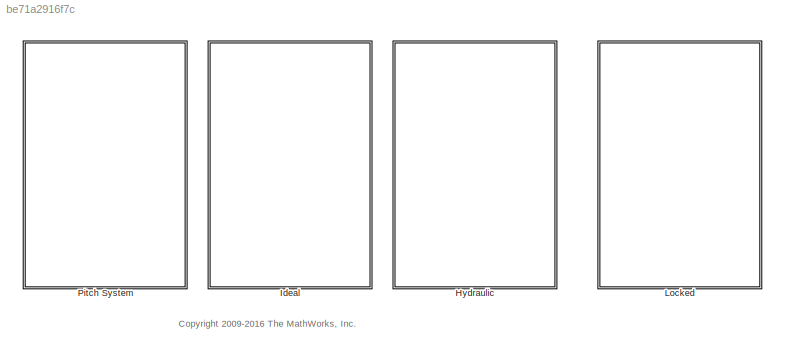
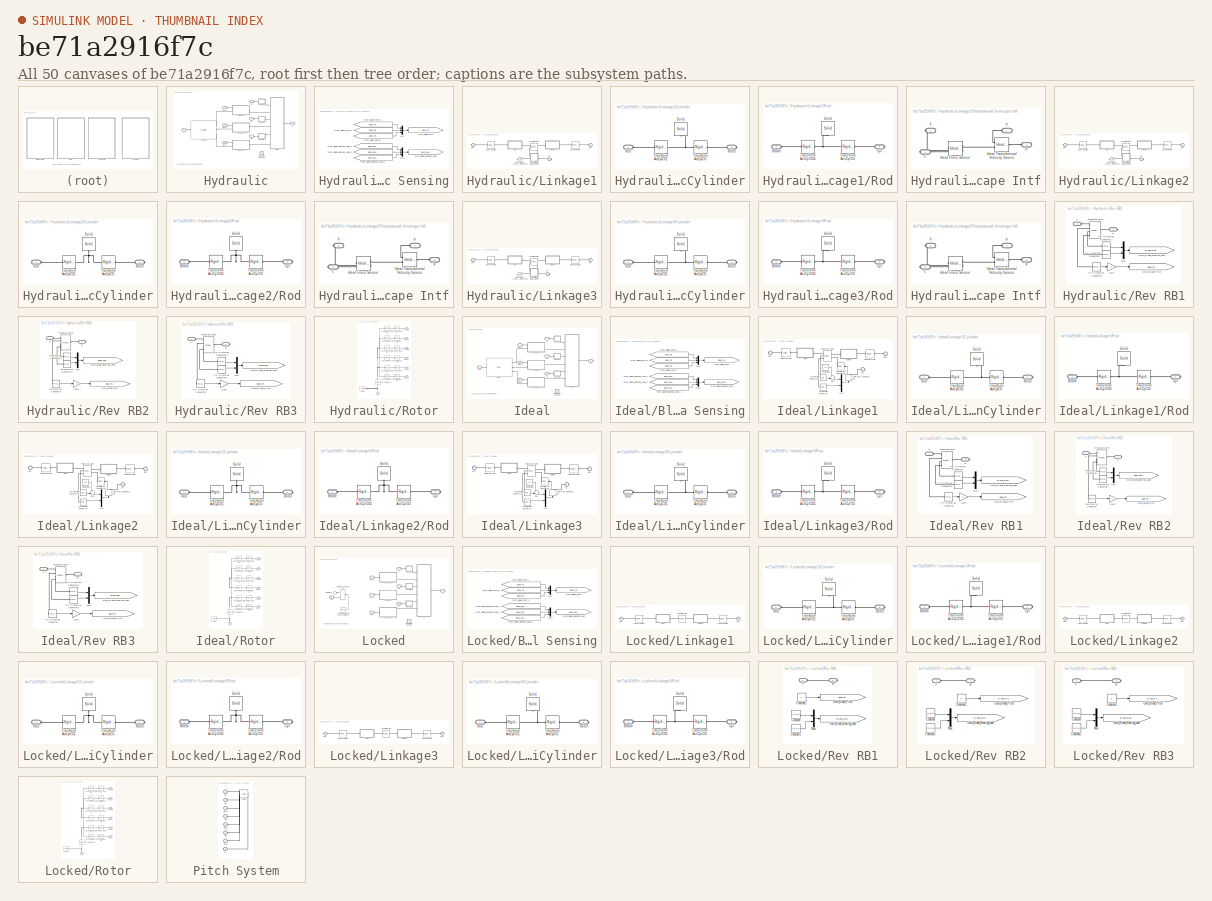
[diagram: thumbnail index - all 50 canvases of the model, root first then tree order]
MODEL slx_be71a2916f7c
KIND library
CONFIG AbsTol = auto
CONFIG EnableMultiTasking = on
CONFIG FixedStep = auto
CONFIG MaxStep = auto
CONFIG MinStep = auto
CONFIG RelTol = 1e-3
CONFIG SampleTimeConstraint = Unconstrained
CONFIG Solver = ode45
CONFIG SolverName = ode45
CONFIG StartTime = 0.0
CONFIG StopTime = 10.0
BLOCK [SubSystem] Hydraulic
  Ports = [0, 0, 0, 0, 0, 7, 1]
  RequestExecContextInheritance = off
  Variant = off
BLOCK [PMIOPort] Hydraulic/B1
  Port = 2
  Side = Left
  Tag = PMCPort
BLOCK [PMIOPort] Hydraulic/B2
  Port = 4
  Side = Left
  Tag = PMCPort
BLOCK [PMIOPort] Hydraulic/B3
  Port = 6
  Side = Left
  Tag = PMCPort
BLOCK [PMIOPort] Hydraulic/BPA1
  Port = 3
  Side = Left
  Tag = PMCPort
BLOCK [PMIOPort] Hydraulic/BPA2
  Port = 5
  Side = Left
  Tag = PMCPort
BLOCK [PMIOPort] Hydraulic/BPA3
  Port = 8
  Side = Left
  Tag = PMCPort
BLOCK [SubSystem] Hydraulic/Blade Pitch Sensing
  Ports = []
  RequestExecContextInheritance = off
  Variant = off
BLOCK [From] Hydraulic/Blade Pitch Sensing/From_Blade_Bearing_Load_1
  CloseFcn = tagdialog Close
  GotoTag = Blade_Bearing_Load_1
  TagVisibility = global
BLOCK [From] Hydraulic/Blade Pitch Sensing/From_Blade_Bearing_Load_2
  CloseFcn = tagdialog Close
  GotoTag = Blade_Bearing_Load_2
  TagVisibility = global
BLOCK [From] Hydraulic/Blade Pitch Sensing/From_Blade_Bearing_Load_3
  CloseFcn = tagdialog Close
  GotoTag = Blade_Bearing_Load_3
  TagVisibility = global
BLOCK [From] Hydraulic/Blade Pitch Sensing/From_Blade_Pitch_1
  CloseFcn = tagdialog Close
  GotoTag = Blade_Pitch_1
  TagVisibility = global
BLOCK [From] Hydraulic/Blade Pitch Sensing/From_Blade_Pitch_2
  CloseFcn = tagdialog Close
  GotoTag = Blade_Pitch_2
  TagVisibility = global
BLOCK [From] Hydraulic/Blade Pitch Sensing/From_Blade_Pitch_3
  CloseFcn = tagdialog Close
  GotoTag = Blade_Pitch_3
  TagVisibility = global
BLOCK [Goto] Hydraulic/Blade Pitch Sensing/Goto_Blade_Bearing_Load
  GotoTag = Blade_Bearing_Loads
  TagVisibility = global
BLOCK [Goto] Hydraulic/Blade Pitch Sensing/Goto_Blade_Pitch
  GotoTag = Blade_Pitch
  TagVisibility = global
BLOCK [Mux] Hydraulic/Blade Pitch Sensing/Mux
  DisplayOption = bar
  Inputs = 3
  Ports = [3, 1]
BLOCK [Mux] Hydraulic/Blade Pitch Sensing/Mux1
  DisplayOption = bar
  Inputs = 3
  Ports = [3, 1]
BLOCK [Reference] Hydraulic/Hydraulic  REF=Pitch_Actuation_Lib/Hydraulic
  Ports = [0, 0, 0, 0, 0, 1, 3]
  SourceBlock = Pitch_Actuation_Lib/Hydraulic
BLOCK [SubSystem] Hydraulic/Linkage1
  Ports = [0, 0, 0, 0, 0, 1, 2]
  RequestExecContextInheritance = off
  Variant = off
BLOCK [PMIOPort] Hydraulic/Linkage1/BPA
  Port = 2
  Side = Right
BLOCK [SubSystem] Hydraulic/Linkage1/Cylinder
  Ports = [0, 0, 0, 0, 0, 1, 1]
  RequestExecContextInheritance = off
  Variant = off
BLOCK [PMIOPort] Hydraulic/Linkage1/Cylinder/Rod
  Port = 1
  Side = Left
BLOCK [PMIOPort] Hydraulic/Linkage1/Cylinder/Rotor
  Port = 2
  Side = Right
BLOCK [Reference] Hydraulic/Linkage1/Cylinder/Solid  REF=sm_lib/Body Elements/Solid
  Ports = [0, 0, 0, 0, 0, 0, 1]
  SourceBlock = sm_lib/Body Elements/Solid
  SourceType = Solid
BLOCK [Reference] Hydraulic/Linkage1/Cylinder/Transform ActCylCG  REF=sm_lib/Frames and
Transforms/Rigid
Transform
  Ports = [0, 0, 0, 0, 0, 1, 1]
  SourceBlock = sm_lib/Frames and\nTransforms/Rigid\nTransform
  SourceType = Rigid\nTransform
BLOCK [Reference] Hydraulic/Linkage1/Cylinder/Transform ActCylCG1  REF=sm_lib/Frames and
Transforms/Rigid
Transform
  Ports = [0, 0, 0, 0, 0, 1, 1]
  SourceBlock = sm_lib/Frames and\nTransforms/Rigid\nTransform
  SourceType = Rigid\nTransform
BLOCK [Reference] Hydraulic/Linkage1/Mechanical Translational Reference  REF=fl_lib/Mechanical/Translational
Elements/Mechanical
Translational
Reference
  Ports = [0, 0, 0, 0, 0, 1]
  SourceBlock = fl_lib/Mechanical/Translational\nElements/Mechanical\nTranslational\nReference
  SourceType = Mechanical\nTranslational\nReference
BLOCK [PMIOPort] Hydraulic/Linkage1/PC
  Port = 3
  Side = Right
BLOCK [Reference] Hydraulic/Linkage1/Prismatic  Joint  REF=sm_lib/Joints/Prismatic
Joint
  Ports = [0, 0, 0, 0, 0, 2, 2]
  SourceBlock = sm_lib/Joints/Prismatic\nJoint
  SourceType = Prismatic\nJoint
BLOCK [PMIOPort] Hydraulic/Linkage1/RPA
  Port = 1
  Side = Left
BLOCK [SubSystem] Hydraulic/Linkage1/Rod
  Ports = [0, 0, 0, 0, 0, 1, 1]
  RequestExecContextInheritance = off
  Variant = off
BLOCK [PMIOPort] Hydraulic/Linkage1/Rod/Blade
  Port = 1
  Side = Left
BLOCK [PMIOPort] Hydraulic/Linkage1/Rod/Cyl
  Port = 2
  Side = Right
BLOCK [Reference] Hydraulic/Linkage1/Rod/Solid  REF=sm_lib/Body Elements/Solid
  Ports = [0, 0, 0, 0, 0, 0, 1]
  SourceBlock = sm_lib/Body Elements/Solid
  SourceType = Solid
BLOCK [Reference] Hydraulic/Linkage1/Rod/Transform ActCylCG  REF=sm_lib/Frames and
Transforms/Rigid
Transform
  Ports = [0, 0, 0, 0, 0, 1, 1]
  SourceBlock = sm_lib/Frames and\nTransforms/Rigid\nTransform
  SourceType = Rigid\nTransform
BLOCK [Reference] Hydraulic/Linkage1/Rod/Transform ActCylCG1  REF=sm_lib/Frames and
Transforms/Rigid
Transform
  Ports = [0, 0, 0, 0, 0, 1, 1]
  SourceBlock = sm_lib/Frames and\nTransforms/Rigid\nTransform
  SourceType = Rigid\nTransform
BLOCK [Reference] Hydraulic/Linkage1/Spherical  Joint  REF=sm_lib/Joints/Spherical
Joint
  Ports = [0, 0, 0, 0, 0, 1, 1]
  SourceBlock = sm_lib/Joints/Spherical\nJoint
  SourceType = Spherical\nJoint
BLOCK [SubSystem] Hydraulic/Linkage1/Translational Simscape Intf
  Ports = [0, 0, 0, 0, 0, 2, 2]
  RequestExecContextInheritance = off
  Variant = off
BLOCK [PMIOPort] Hydraulic/Linkage1/Translational Simscape Intf/C
  Port = 4
  Side = Right
BLOCK [PMIOPort] Hydraulic/Linkage1/Translational Simscape Intf/F
  Port = 2
  Side = Right
BLOCK [Reference] Hydraulic/Linkage1/Translational Simscape Intf/Ideal Force Sensor  REF=fl_lib/Mechanical/Mechanical Sensors/Ideal Force Sensor
  Ports = [0, 0, 0, 0, 0, 1, 2]
  SourceBlock = fl_lib/Mechanical/Mechanical Sensors/Ideal Force Sensor
  SourceType = Ideal Force Sensor
BLOCK [Reference] Hydraulic/Linkage1/Translational Simscape Intf/Ideal Translational Velocity Source  REF=fl_lib/Mechanical/Mechanical Sources/Ideal Translational
Velocity Source
  Ports = [0, 0, 0, 0, 0, 1, 2]
  SourceBlock = fl_lib/Mechanical/Mechanical Sources/Ideal Translational\nVelocity Source
  SourceType = Ideal Translational\nVelocity Source
BLOCK [PMIOPort] Hydraulic/Linkage1/Translational Simscape Intf/R
  Port = 3
  Side = Left
BLOCK [PMIOPort] Hydraulic/Linkage1/Translational Simscape Intf/V
  Port = 1
  Side = Left
BLOCK [Reference] Hydraulic/Linkage1/Universal  Joint  REF=sm_lib/Joints/Universal
Joint
  Ports = [0, 0, 0, 0, 0, 1, 1]
  SourceBlock = sm_lib/Joints/Universal\nJoint
  SourceType = Universal\nJoint
BLOCK [SubSystem] Hydraulic/Linkage2
  Ports = [0, 0, 0, 0, 0, 1, 2]
  RequestExecContextInheritance = off
  Variant = off
BLOCK [PMIOPort] Hydraulic/Linkage2/BPA
  Port = 2
  Side = Right
BLOCK [SubSystem] Hydraulic/Linkage2/Cylinder
  Ports = [0, 0, 0, 0, 0, 1, 1]
  RequestExecContextInheritance = off
  Variant = off
BLOCK [PMIOPort] Hydraulic/Linkage2/Cylinder/Rod
  Port = 1
  Side = Left
BLOCK [PMIOPort] Hydraulic/Linkage2/Cylinder/Rotor
  Port = 2
  Side = Right
BLOCK [Reference] Hydraulic/Linkage2/Cylinder/Solid  REF=sm_lib/Body Elements/Solid
  Ports = [0, 0, 0, 0, 0, 0, 1]
  SourceBlock = sm_lib/Body Elements/Solid
  SourceType = Solid
BLOCK [Reference] Hydraulic/Linkage2/Cylinder/Transform ActCylCG  REF=sm_lib/Frames and
Transforms/Rigid
Transform
  Ports = [0, 0, 0, 0, 0, 1, 1]
  SourceBlock = sm_lib/Frames and\nTransforms/Rigid\nTransform
  SourceType = Rigid\nTransform
BLOCK [Reference] Hydraulic/Linkage2/Cylinder/Transform ActCylCG1  REF=sm_lib/Frames and
Transforms/Rigid
Transform
  Ports = [0, 0, 0, 0, 0, 1, 1]
  SourceBlock = sm_lib/Frames and\nTransforms/Rigid\nTransform
  SourceType = Rigid\nTransform
BLOCK [Reference] Hydraulic/Linkage2/Mechanical Translational Reference  REF=fl_lib/Mechanical/Translational
Elements/Mechanical
Translational
Reference
  Ports = [0, 0, 0, 0, 0, 1]
  SourceBlock = fl_lib/Mechanical/Translational\nElements/Mechanical\nTranslational\nReference
  SourceType = Mechanical\nTranslational\nReference
BLOCK [PMIOPort] Hydraulic/Linkage2/PC
  Port = 3
  Side = Right
BLOCK [Reference] Hydraulic/Linkage2/Prismatic  Joint  REF=sm_lib/Joints/Prismatic
Joint
  Ports = [0, 0, 0, 0, 0, 2, 2]
  SourceBlock = sm_lib/Joints/Prismatic\nJoint
  SourceType = Prismatic\nJoint
BLOCK [PMIOPort] Hydraulic/Linkage2/RPA
  Port = 1
  Side = Left
BLOCK [SubSystem] Hydraulic/Linkage2/Rod
  Ports = [0, 0, 0, 0, 0, 1, 1]
  RequestExecContextInheritance = off
  Variant = off
BLOCK [PMIOPort] Hydraulic/Linkage2/Rod/Blade
  Port = 1
  Side = Left
BLOCK [PMIOPort] Hydraulic/Linkage2/Rod/Cyl
  Port = 2
  Side = Right
BLOCK [Reference] Hydraulic/Linkage2/Rod/Solid  REF=sm_lib/Body Elements/Solid
  Ports = [0, 0, 0, 0, 0, 0, 1]
  SourceBlock = sm_lib/Body Elements/Solid
  SourceType = Solid
BLOCK [Reference] Hydraulic/Linkage2/Rod/Transform ActCylCG  REF=sm_lib/Frames and
Transforms/Rigid
Transform
  Ports = [0, 0, 0, 0, 0, 1, 1]
  SourceBlock = sm_lib/Frames and\nTransforms/Rigid\nTransform
  SourceType = Rigid\nTransform
BLOCK [Reference] Hydraulic/Linkage2/Rod/Transform ActCylCG1  REF=sm_lib/Frames and
Transforms/Rigid
Transform
  Ports = [0, 0, 0, 0, 0, 1, 1]
  SourceBlock = sm_lib/Frames and\nTransforms/Rigid\nTransform
  SourceType = Rigid\nTransform
BLOCK [Reference] Hydraulic/Linkage2/Spherical  Joint  REF=sm_lib/Joints/Spherical
Joint
  Ports = [0, 0, 0, 0, 0, 1, 1]
  SourceBlock = sm_lib/Joints/Spherical\nJoint
  SourceType = Spherical\nJoint
BLOCK [SubSystem] Hydraulic/Linkage2/Translational Simscape Intf
  Ports = [0, 0, 0, 0, 0, 2, 2]
  RequestExecContextInheritance = off
  Variant = off
BLOCK [PMIOPort] Hydraulic/Linkage2/Translational Simscape Intf/C
  Port = 4
  Side = Right
BLOCK [PMIOPort] Hydraulic/Linkage2/Translational Simscape Intf/F
  Port = 2
  Side = Right
BLOCK [Reference] Hydraulic/Linkage2/Translational Simscape Intf/Ideal Force Sensor  REF=fl_lib/Mechanical/Mechanical Sensors/Ideal Force Sensor
  Ports = [0, 0, 0, 0, 0, 1, 2]
  SourceBlock = fl_lib/Mechanical/Mechanical Sensors/Ideal Force Sensor
  SourceType = Ideal Force Sensor
BLOCK [Reference] Hydraulic/Linkage2/Translational Simscape Intf/Ideal Translational Velocity Source  REF=fl_lib/Mechanical/Mechanical Sources/Ideal Translational
Velocity Source
  Ports = [0, 0, 0, 0, 0, 1, 2]
  SourceBlock = fl_lib/Mechanical/Mechanical Sources/Ideal Translational\nVelocity Source
  SourceType = Ideal Translational\nVelocity Source
BLOCK [PMIOPort] Hydraulic/Linkage2/Translational Simscape Intf/R
  Port = 3
  Side = Left
BLOCK [PMIOPort] Hydraulic/Linkage2/Translational Simscape Intf/V
  Port = 1
  Side = Left
BLOCK [Reference] Hydraulic/Linkage2/Universal  Joint  REF=sm_lib/Joints/Universal
Joint
  Ports = [0, 0, 0, 0, 0, 1, 1]
  SourceBlock = sm_lib/Joints/Universal\nJoint
  SourceType = Universal\nJoint
BLOCK [SubSystem] Hydraulic/Linkage3
  Ports = [0, 0, 0, 0, 0, 1, 2]
  RequestExecContextInheritance = off
  Variant = off
BLOCK [PMIOPort] Hydraulic/Linkage3/BPA
  Port = 2
  Side = Right
BLOCK [SubSystem] Hydraulic/Linkage3/Cylinder
  Ports = [0, 0, 0, 0, 0, 1, 1]
  RequestExecContextInheritance = off
  Variant = off
BLOCK [PMIOPort] Hydraulic/Linkage3/Cylinder/Rod
  Port = 1
  Side = Left
BLOCK [PMIOPort] Hydraulic/Linkage3/Cylinder/Rotor
  Port = 2
  Side = Right
BLOCK [Reference] Hydraulic/Linkage3/Cylinder/Solid  REF=sm_lib/Body Elements/Solid
  Ports = [0, 0, 0, 0, 0, 0, 1]
  SourceBlock = sm_lib/Body Elements/Solid
  SourceType = Solid
BLOCK [Reference] Hydraulic/Linkage3/Cylinder/Transform ActCylCG  REF=sm_lib/Frames and
Transforms/Rigid
Transform
  Ports = [0, 0, 0, 0, 0, 1, 1]
  SourceBlock = sm_lib/Frames and\nTransforms/Rigid\nTransform
  SourceType = Rigid\nTransform
BLOCK [Reference] Hydraulic/Linkage3/Cylinder/Transform ActCylCG1  REF=sm_lib/Frames and
Transforms/Rigid
Transform
  Ports = [0, 0, 0, 0, 0, 1, 1]
  SourceBlock = sm_lib/Frames and\nTransforms/Rigid\nTransform
  SourceType = Rigid\nTransform
BLOCK [Reference] Hydraulic/Linkage3/Mechanical Translational Reference  REF=fl_lib/Mechanical/Translational
Elements/Mechanical
Translational
Reference
  Ports = [0, 0, 0, 0, 0, 1]
  SourceBlock = fl_lib/Mechanical/Translational\nElements/Mechanical\nTranslational\nReference
  SourceType = Mechanical\nTranslational\nReference
BLOCK [PMIOPort] Hydraulic/Linkage3/PC
  Port = 3
  Side = Right
BLOCK [Reference] Hydraulic/Linkage3/Prismatic  Joint  REF=sm_lib/Joints/Prismatic
Joint
  Ports = [0, 0, 0, 0, 0, 2, 2]
  SourceBlock = sm_lib/Joints/Prismatic\nJoint
  SourceType = Prismatic\nJoint
BLOCK [PMIOPort] Hydraulic/Linkage3/RPA
  Port = 1
  Side = Left
BLOCK [SubSystem] Hydraulic/Linkage3/Rod
  Ports = [0, 0, 0, 0, 0, 1, 1]
  RequestExecContextInheritance = off
  Variant = off
BLOCK [PMIOPort] Hydraulic/Linkage3/Rod/Blade
  Port = 1
  Side = Left
BLOCK [PMIOPort] Hydraulic/Linkage3/Rod/Cyl
  Port = 2
  Side = Right
BLOCK [Reference] Hydraulic/Linkage3/Rod/Solid  REF=sm_lib/Body Elements/Solid
  Ports = [0, 0, 0, 0, 0, 0, 1]
  SourceBlock = sm_lib/Body Elements/Solid
  SourceType = Solid
BLOCK [Reference] Hydraulic/Linkage3/Rod/Transform ActCylCG  REF=sm_lib/Frames and
Transforms/Rigid
Transform
  Ports = [0, 0, 0, 0, 0, 1, 1]
  SourceBlock = sm_lib/Frames and\nTransforms/Rigid\nTransform
  SourceType = Rigid\nTransform
BLOCK [Reference] Hydraulic/Linkage3/Rod/Transform ActCylCG1  REF=sm_lib/Frames and
Transforms/Rigid
Transform
  Ports = [0, 0, 0, 0, 0, 1, 1]
  SourceBlock = sm_lib/Frames and\nTransforms/Rigid\nTransform
  SourceType = Rigid\nTransform
BLOCK [Reference] Hydraulic/Linkage3/Spherical  Joint  REF=sm_lib/Joints/Spherical
Joint
  Ports = [0, 0, 0, 0, 0, 1, 1]
  SourceBlock = sm_lib/Joints/Spherical\nJoint
  SourceType = Spherical\nJoint
BLOCK [SubSystem] Hydraulic/Linkage3/Translational Simscape Intf
  Ports = [0, 0, 0, 0, 0, 2, 2]
  RequestExecContextInheritance = off
  Variant = off
BLOCK [PMIOPort] Hydraulic/Linkage3/Translational Simscape Intf/C
  Port = 4
  Side = Right
BLOCK [PMIOPort] Hydraulic/Linkage3/Translational Simscape Intf/F
  Port = 2
  Side = Right
BLOCK [Reference] Hydraulic/Linkage3/Translational Simscape Intf/Ideal Force Sensor  REF=fl_lib/Mechanical/Mechanical Sensors/Ideal Force Sensor
  Ports = [0, 0, 0, 0, 0, 1, 2]
  SourceBlock = fl_lib/Mechanical/Mechanical Sensors/Ideal Force Sensor
  SourceType = Ideal Force Sensor
BLOCK [Reference] Hydraulic/Linkage3/Translational Simscape Intf/Ideal Translational Velocity Source  REF=fl_lib/Mechanical/Mechanical Sources/Ideal Translational
Velocity Source
  Ports = [0, 0, 0, 0, 0, 1, 2]
  SourceBlock = fl_lib/Mechanical/Mechanical Sources/Ideal Translational\nVelocity Source
  SourceType = Ideal Translational\nVelocity Source
BLOCK [PMIOPort] Hydraulic/Linkage3/Translational Simscape Intf/R
  Port = 3
  Side = Left
BLOCK [PMIOPort] Hydraulic/Linkage3/Translational Simscape Intf/V
  Port = 1
  Side = Left
BLOCK [Reference] Hydraulic/Linkage3/Universal  Joint  REF=sm_lib/Joints/Universal
Joint
  Ports = [0, 0, 0, 0, 0, 1, 1]
  SourceBlock = sm_lib/Joints/Universal\nJoint
  SourceType = Universal\nJoint
BLOCK [PMIOPort] Hydraulic/N
  Port = 7
  Side = Right
  Tag = PMCPort
BLOCK [PMIOPort] Hydraulic/PC
  Port = 1
  Side = Left
  Tag = PMCPort
BLOCK [SubSystem] Hydraulic/Rev RB1
  Ports = [0, 0, 0, 0, 0, 1, 1]
  RequestExecContextInheritance = off
  Variant = off
BLOCK [PMIOPort] Hydraulic/Rev RB1/B
  Port = 2
  Side = Right
BLOCK [PMIOPort] Hydraulic/Rev RB1/F
  Port = 1
  Side = Left
BLOCK [Gain] Hydraulic/Rev RB1/Gain
  Gain = -1
  OutDataTypeStr = Inherit: Inherit via internal rule
  ParamDataTypeStr = Inherit: Inherit via internal rule
  SaturateOnIntegerOverflow = off
BLOCK [Goto] Hydraulic/Rev RB1/Goto_Blade_Bearing_Load
  GotoTag = Blade_Bearing_Load_1
  TagVisibility = global
BLOCK [Goto] Hydraulic/Rev RB1/Goto_Blade_Pitch
  GotoTag = Blade_Pitch_1
  TagVisibility = global
BLOCK [Mux] Hydraulic/Rev RB1/Mux
  DisplayOption = bar
  Inputs = 2
  Ports = [2, 1]
BLOCK [Reference] Hydraulic/Rev RB1/PS-Simulink Converter  REF=nesl_utility/PS-Simulink
Converter
  Ports = [0, 1, 0, 0, 0, 1]
  SourceBlock = nesl_utility/PS-Simulink\nConverter
  SourceType = PS-Simulink\nConverter
BLOCK [Reference] Hydraulic/Rev RB1/PS-Simulink Converter1  REF=nesl_utility/PS-Simulink
Converter
  Ports = [0, 1, 0, 0, 0, 1]
  SourceBlock = nesl_utility/PS-Simulink\nConverter
  SourceType = PS-Simulink\nConverter
BLOCK [Reference] Hydraulic/Rev RB1/PS-Simulink Converter2  REF=nesl_utility/PS-Simulink
Converter
  Ports = [0, 1, 0, 0, 0, 1]
  SourceBlock = nesl_utility/PS-Simulink\nConverter
  SourceType = PS-Simulink\nConverter
BLOCK [Reference] Hydraulic/Rev RB1/Revolute Joint  REF=sm_lib/Joints/Revolute Joint
  Ports = [0, 0, 0, 0, 0, 1, 4]
  SourceBlock = sm_lib/Joints/Revolute Joint
  SourceType = Revolute Joint
BLOCK [SubSystem] Hydraulic/Rev RB2
  Ports = [0, 0, 0, 0, 0, 1, 1]
  RequestExecContextInheritance = off
  Variant = off
BLOCK [PMIOPort] Hydraulic/Rev RB2/B
  Port = 2
  Side = Right
BLOCK [PMIOPort] Hydraulic/Rev RB2/F
  Port = 1
  Side = Left
BLOCK [Gain] Hydraulic/Rev RB2/Gain
  Gain = -1
  OutDataTypeStr = Inherit: Inherit via internal rule
  ParamDataTypeStr = Inherit: Inherit via internal rule
  SaturateOnIntegerOverflow = off
BLOCK [Goto] Hydraulic/Rev RB2/Goto_Blade_Bearing_Load
  GotoTag = Blade_Bearing_Load_2
  TagVisibility = global
BLOCK [Goto] Hydraulic/Rev RB2/Goto_Blade_Pitch
  GotoTag = Blade_Pitch_2
  TagVisibility = global
BLOCK [Mux] Hydraulic/Rev RB2/Mux
  DisplayOption = bar
  Inputs = 2
  Ports = [2, 1]
BLOCK [Reference] Hydraulic/Rev RB2/PS-Simulink Converter  REF=nesl_utility/PS-Simulink
Converter
  Ports = [0, 1, 0, 0, 0, 1]
  SourceBlock = nesl_utility/PS-Simulink\nConverter
  SourceType = PS-Simulink\nConverter
BLOCK [Reference] Hydraulic/Rev RB2/PS-Simulink Converter1  REF=nesl_utility/PS-Simulink
Converter
  Ports = [0, 1, 0, 0, 0, 1]
  SourceBlock = nesl_utility/PS-Simulink\nConverter
  SourceType = PS-Simulink\nConverter
BLOCK [Reference] Hydraulic/Rev RB2/PS-Simulink Converter2  REF=nesl_utility/PS-Simulink
Converter
  Ports = [0, 1, 0, 0, 0, 1]
  SourceBlock = nesl_utility/PS-Simulink\nConverter
  SourceType = PS-Simulink\nConverter
BLOCK [Reference] Hydraulic/Rev RB2/Revolute Joint  REF=sm_lib/Joints/Revolute Joint
  Ports = [0, 0, 0, 0, 0, 1, 4]
  SourceBlock = sm_lib/Joints/Revolute Joint
  SourceType = Revolute Joint
BLOCK [SubSystem] Hydraulic/Rev RB3
  Ports = [0, 0, 0, 0, 0, 1, 1]
  RequestExecContextInheritance = off
  Variant = off
BLOCK [PMIOPort] Hydraulic/Rev RB3/B
  Port = 2
  Side = Right
BLOCK [PMIOPort] Hydraulic/Rev RB3/F
  Port = 1
  Side = Left
BLOCK [Gain] Hydraulic/Rev RB3/Gain
  Gain = -1
  OutDataTypeStr = Inherit: Inherit via internal rule
  ParamDataTypeStr = Inherit: Inherit via internal rule
  SaturateOnIntegerOverflow = off
BLOCK [Goto] Hydraulic/Rev RB3/Goto_Blade_Bearing_Load
  GotoTag = Blade_Bearing_Load_3
  TagVisibility = global
BLOCK [Goto] Hydraulic/Rev RB3/Goto_Blade_Pitch
  GotoTag = Blade_Pitch_3
  TagVisibility = global
BLOCK [Mux] Hydraulic/Rev RB3/Mux
  DisplayOption = bar
  Inputs = 2
  Ports = [2, 1]
BLOCK [Reference] Hydraulic/Rev RB3/PS-Simulink Converter  REF=nesl_utility/PS-Simulink
Converter
  Ports = [0, 1, 0, 0, 0, 1]
  SourceBlock = nesl_utility/PS-Simulink\nConverter
  SourceType = PS-Simulink\nConverter
BLOCK [Reference] Hydraulic/Rev RB3/PS-Simulink Converter1  REF=nesl_utility/PS-Simulink
Converter
  Ports = [0, 1, 0, 0, 0, 1]
  SourceBlock = nesl_utility/PS-Simulink\nConverter
  SourceType = PS-Simulink\nConverter
BLOCK [Reference] Hydraulic/Rev RB3/PS-Simulink Converter2  REF=nesl_utility/PS-Simulink
Converter
  Ports = [0, 1, 0, 0, 0, 1]
  SourceBlock = nesl_utility/PS-Simulink\nConverter
  SourceType = PS-Simulink\nConverter
BLOCK [Reference] Hydraulic/Rev RB3/Revolute Joint  REF=sm_lib/Joints/Revolute Joint
  Ports = [0, 0, 0, 0, 0, 1, 4]
  SourceBlock = sm_lib/Joints/Revolute Joint
  SourceType = Revolute Joint
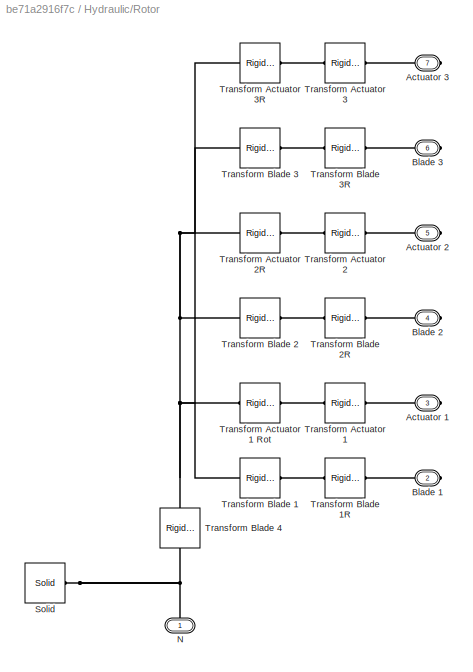
BLOCK [SubSystem] Hydraulic/Rotor
  Ports = [0, 0, 0, 0, 0, 1, 6]
  RequestExecContextInheritance = off
  Variant = off
BLOCK [PMIOPort] Hydraulic/Rotor/Actuator 1
  Port = 3
  Side = Right
BLOCK [PMIOPort] Hydraulic/Rotor/Actuator 2
  Port = 5
  Side = Right
BLOCK [PMIOPort] Hydraulic/Rotor/Actuator 3
  Port = 7
  Side = Right
BLOCK [PMIOPort] Hydraulic/Rotor/Blade 1
  Port = 2
  Side = Right
BLOCK [PMIOPort] Hydraulic/Rotor/Blade 2
  Port = 4
  Side = Right
BLOCK [PMIOPort] Hydraulic/Rotor/Blade 3
  Port = 6
  Side = Right
BLOCK [PMIOPort] Hydraulic/Rotor/N
  Port = 1
  Side = Left
BLOCK [Reference] Hydraulic/Rotor/Solid  REF=sm_lib/Body Elements/Solid
  Ports = [0, 0, 0, 0, 0, 0, 1]
  SourceBlock = sm_lib/Body Elements/Solid
  SourceType = Solid
BLOCK [Reference] Hydraulic/Rotor/Transform Actuator 1  REF=sm_lib/Frames and
Transforms/Rigid
Transform
  Ports = [0, 0, 0, 0, 0, 1, 1]
  SourceBlock = sm_lib/Frames and\nTransforms/Rigid\nTransform
  SourceType = Rigid\nTransform
BLOCK [Reference] Hydraulic/Rotor/Transform Actuator 1 Rot  REF=sm_lib/Frames and
Transforms/Rigid
Transform
  Ports = [0, 0, 0, 0, 0, 1, 1]
  SourceBlock = sm_lib/Frames and\nTransforms/Rigid\nTransform
  SourceType = Rigid\nTransform
BLOCK [Reference] Hydraulic/Rotor/Transform Actuator 2  REF=sm_lib/Frames and
Transforms/Rigid
Transform
  Ports = [0, 0, 0, 0, 0, 1, 1]
  SourceBlock = sm_lib/Frames and\nTransforms/Rigid\nTransform
  SourceType = Rigid\nTransform
BLOCK [Reference] Hydraulic/Rotor/Transform Actuator 2R  REF=sm_lib/Frames and
Transforms/Rigid
Transform
  Ports = [0, 0, 0, 0, 0, 1, 1]
  SourceBlock = sm_lib/Frames and\nTransforms/Rigid\nTransform
  SourceType = Rigid\nTransform
BLOCK [Reference] Hydraulic/Rotor/Transform Actuator 3  REF=sm_lib/Frames and
Transforms/Rigid
Transform
  Ports = [0, 0, 0, 0, 0, 1, 1]
  SourceBlock = sm_lib/Frames and\nTransforms/Rigid\nTransform
  SourceType = Rigid\nTransform
BLOCK [Reference] Hydraulic/Rotor/Transform Actuator 3R  REF=sm_lib/Frames and
Transforms/Rigid
Transform
  Ports = [0, 0, 0, 0, 0, 1, 1]
  SourceBlock = sm_lib/Frames and\nTransforms/Rigid\nTransform
  SourceType = Rigid\nTransform
BLOCK [Reference] Hydraulic/Rotor/Transform Blade 1  REF=sm_lib/Frames and
Transforms/Rigid
Transform
  Ports = [0, 0, 0, 0, 0, 1, 1]
  SourceBlock = sm_lib/Frames and\nTransforms/Rigid\nTransform
  SourceType = Rigid\nTransform
BLOCK [Reference] Hydraulic/Rotor/Transform Blade 1R  REF=sm_lib/Frames and
Transforms/Rigid
Transform
  Ports = [0, 0, 0, 0, 0, 1, 1]
  SourceBlock = sm_lib/Frames and\nTransforms/Rigid\nTransform
  SourceType = Rigid\nTransform
BLOCK [Reference] Hydraulic/Rotor/Transform Blade 2  REF=sm_lib/Frames and
Transforms/Rigid
Transform
  Ports = [0, 0, 0, 0, 0, 1, 1]
  SourceBlock = sm_lib/Frames and\nTransforms/Rigid\nTransform
  SourceType = Rigid\nTransform
BLOCK [Reference] Hydraulic/Rotor/Transform Blade 2R  REF=sm_lib/Frames and
Transforms/Rigid
Transform
  Ports = [0, 0, 0, 0, 0, 1, 1]
  SourceBlock = sm_lib/Frames and\nTransforms/Rigid\nTransform
  SourceType = Rigid\nTransform
BLOCK [Reference] Hydraulic/Rotor/Transform Blade 3  REF=sm_lib/Frames and
Transforms/Rigid
Transform
  Ports = [0, 0, 0, 0, 0, 1, 1]
  SourceBlock = sm_lib/Frames and\nTransforms/Rigid\nTransform
  SourceType = Rigid\nTransform
BLOCK [Reference] Hydraulic/Rotor/Transform Blade 3R  REF=sm_lib/Frames and
Transforms/Rigid
Transform
  Ports = [0, 0, 0, 0, 0, 1, 1]
  SourceBlock = sm_lib/Frames and\nTransforms/Rigid\nTransform
  SourceType = Rigid\nTransform
BLOCK [Reference] Hydraulic/Rotor/Transform Blade 4  REF=sm_lib/Frames and
Transforms/Rigid
Transform
  Ports = [0, 0, 0, 0, 0, 1, 1]
  SourceBlock = sm_lib/Frames and\nTransforms/Rigid\nTransform
  SourceType = Rigid\nTransform
BLOCK [SubSystem] Ideal
  Ports = [0, 0, 0, 0, 0, 7, 1]
  RequestExecContextInheritance = off
  Variant = off
BLOCK [PMIOPort] Ideal/B1
  Port = 2
  Side = Left
  Tag = PMCPort
BLOCK [PMIOPort] Ideal/B2
  Port = 4
  Side = Left
  Tag = PMCPort
BLOCK [PMIOPort] Ideal/B3
  Port = 6
  Side = Left
  Tag = PMCPort
BLOCK [PMIOPort] Ideal/BPA1
  Port = 3
  Side = Left
  Tag = PMCPort
BLOCK [PMIOPort] Ideal/BPA2
  Port = 5
  Side = Left
  Tag = PMCPort
BLOCK [PMIOPort] Ideal/BPA3
  Port = 8
  Side = Left
  Tag = PMCPort
BLOCK [SubSystem] Ideal/Blade Pitch Sensing
  Ports = []
  RequestExecContextInheritance = off
  Variant = off
BLOCK [From] Ideal/Blade Pitch Sensing/From_Blade_Bearing_Load_1
  CloseFcn = tagdialog Close
  GotoTag = Blade_Bearing_Load_1
  TagVisibility = global
BLOCK [From] Ideal/Blade Pitch Sensing/From_Blade_Bearing_Load_2
  CloseFcn = tagdialog Close
  GotoTag = Blade_Bearing_Load_2
  TagVisibility = global
BLOCK [From] Ideal/Blade Pitch Sensing/From_Blade_Bearing_Load_3
  CloseFcn = tagdialog Close
  GotoTag = Blade_Bearing_Load_3
  TagVisibility = global
BLOCK [From] Ideal/Blade Pitch Sensing/From_Blade_Pitch_1
  CloseFcn = tagdialog Close
  GotoTag = Blade_Pitch_1
  TagVisibility = global
BLOCK [From] Ideal/Blade Pitch Sensing/From_Blade_Pitch_2
  CloseFcn = tagdialog Close
  GotoTag = Blade_Pitch_2
  TagVisibility = global
BLOCK [From] Ideal/Blade Pitch Sensing/From_Blade_Pitch_3
  CloseFcn = tagdialog Close
  GotoTag = Blade_Pitch_3
  TagVisibility = global
BLOCK [Goto] Ideal/Blade Pitch Sensing/Goto_Blade_Bearing_Load
  GotoTag = Blade_Bearing_Loads
  TagVisibility = global
BLOCK [Goto] Ideal/Blade Pitch Sensing/Goto_Blade_Pitch
  GotoTag = Blade_Pitch
  TagVisibility = global
BLOCK [Mux] Ideal/Blade Pitch Sensing/Mux
  DisplayOption = bar
  Inputs = 3
  Ports = [3, 1]
BLOCK [Mux] Ideal/Blade Pitch Sensing/Mux1
  DisplayOption = bar
  Inputs = 3
  Ports = [3, 1]
BLOCK [Reference] Ideal/Ideal  REF=Pitch_Actuation_Lib/Ideal
  Ports = [0, 0, 0, 0, 0, 1, 3]
  SourceBlock = Pitch_Actuation_Lib/Ideal
BLOCK [SubSystem] Ideal/Linkage1
  Ports = [0, 0, 0, 0, 0, 1, 2]
  RequestExecContextInheritance = off
  Variant = off
BLOCK [PMIOPort] Ideal/Linkage1/BPA
  Port = 1
  Side = Left
BLOCK [SubSystem] Ideal/Linkage1/Cylinder
  Ports = [0, 0, 0, 0, 0, 1, 1]
  RequestExecContextInheritance = off
  Variant = off
BLOCK [PMIOPort] Ideal/Linkage1/Cylinder/Rod
  Port = 1
  Side = Left
BLOCK [PMIOPort] Ideal/Linkage1/Cylinder/Rotor
  Port = 2
  Side = Right
BLOCK [Reference] Ideal/Linkage1/Cylinder/Solid  REF=sm_lib/Body Elements/Solid
  Ports = [0, 0, 0, 0, 0, 0, 1]
  SourceBlock = sm_lib/Body Elements/Solid
  SourceType = Solid
BLOCK [Reference] Ideal/Linkage1/Cylinder/Transform ActCylCG  REF=sm_lib/Frames and
Transforms/Rigid
Transform
  Ports = [0, 0, 0, 0, 0, 1, 1]
  SourceBlock = sm_lib/Frames and\nTransforms/Rigid\nTransform
  SourceType = Rigid\nTransform
BLOCK [Reference] Ideal/Linkage1/Cylinder/Transform ActCylCG1  REF=sm_lib/Frames and
Transforms/Rigid
Transform
  Ports = [0, 0, 0, 0, 0, 1, 1]
  SourceBlock = sm_lib/Frames and\nTransforms/Rigid\nTransform
  SourceType = Rigid\nTransform
BLOCK [Constant] Ideal/Linkage1/Initial_Disp
  Value = 0.8
BLOCK [Mux] Ideal/Linkage1/Mux
  DisplayOption = bar
  Inputs = 2
  Ports = [2, 1]
BLOCK [PMIOPort] Ideal/Linkage1/PC
  Port = 3
  Side = Right
BLOCK [Reference] Ideal/Linkage1/PS-Simulink Converter  REF=nesl_utility/PS-Simulink
Converter
  Ports = [0, 1, 0, 0, 0, 1]
  SourceBlock = nesl_utility/PS-Simulink\nConverter
  SourceType = PS-Simulink\nConverter
BLOCK [Reference] Ideal/Linkage1/PS-Simulink Converter1  REF=nesl_utility/PS-Simulink
Converter
  Ports = [0, 1, 0, 0, 0, 1]
  SourceBlock = nesl_utility/PS-Simulink\nConverter
  SourceType = PS-Simulink\nConverter
BLOCK [Reference] Ideal/Linkage1/Prismatic  Joint  REF=sm_lib/Joints/Prismatic
Joint
  Ports = [0, 0, 0, 0, 0, 2, 3]
  SourceBlock = sm_lib/Joints/Prismatic\nJoint
  SourceType = Prismatic\nJoint
BLOCK [PMIOPort] Ideal/Linkage1/RPA
  Port = 2
  Side = Right
BLOCK [SubSystem] Ideal/Linkage1/Rod
  Ports = [0, 0, 0, 0, 0, 1, 1]
  RequestExecContextInheritance = off
  Variant = off
BLOCK [PMIOPort] Ideal/Linkage1/Rod/Blade
  Port = 1
  Side = Left
BLOCK [PMIOPort] Ideal/Linkage1/Rod/Cyl
  Port = 2
  Side = Right
BLOCK [Reference] Ideal/Linkage1/Rod/Solid  REF=sm_lib/Body Elements/Solid
  Ports = [0, 0, 0, 0, 0, 0, 1]
  SourceBlock = sm_lib/Body Elements/Solid
  SourceType = Solid
BLOCK [Reference] Ideal/Linkage1/Rod/Transform ActCylCG  REF=sm_lib/Frames and
Transforms/Rigid
Transform
  Ports = [0, 0, 0, 0, 0, 1, 1]
  SourceBlock = sm_lib/Frames and\nTransforms/Rigid\nTransform
  SourceType = Rigid\nTransform
BLOCK [Reference] Ideal/Linkage1/Rod/Transform ActCylCG1  REF=sm_lib/Frames and
Transforms/Rigid
Transform
  Ports = [0, 0, 0, 0, 0, 1, 1]
  SourceBlock = sm_lib/Frames and\nTransforms/Rigid\nTransform
  SourceType = Rigid\nTransform
BLOCK [Reference] Ideal/Linkage1/Simulink-PS Converter  REF=nesl_utility/Simulink-PS
Converter
  Ports = [1, 0, 0, 0, 0, 0, 1]
  SourceBlock = nesl_utility/Simulink-PS\nConverter
  SourceType = Simulink-PS\nConverter
BLOCK [Reference] Ideal/Linkage1/Spherical  Joint  REF=sm_lib/Joints/Spherical
Joint
  Ports = [0, 0, 0, 0, 0, 1, 1]
  SourceBlock = sm_lib/Joints/Spherical\nJoint
  SourceType = Spherical\nJoint
BLOCK [Sum] Ideal/Linkage1/Sum
  IconShape = round
  InputSameDT = off
  Inputs = ++|
  OutDataTypeStr = Inherit: Inherit via internal rule
  Ports = [2, 1]
  SaturateOnIntegerOverflow = off
BLOCK [TwoWayConnection] Ideal/Linkage1/Two-Way Connection
  Ports = [1, 1, 0, 0, 0, 0, 1]
BLOCK [Reference] Ideal/Linkage1/Universal  Joint  REF=sm_lib/Joints/Universal
Joint
  Ports = [0, 0, 0, 0, 0, 1, 1]
  SourceBlock = sm_lib/Joints/Universal\nJoint
  SourceType = Universal\nJoint
BLOCK [SubSystem] Ideal/Linkage2
  Ports = [0, 0, 0, 0, 0, 1, 2]
  RequestExecContextInheritance = off
  Variant = off
BLOCK [PMIOPort] Ideal/Linkage2/BPA
  Port = 1
  Side = Left
BLOCK [SubSystem] Ideal/Linkage2/Cylinder
  Ports = [0, 0, 0, 0, 0, 1, 1]
  RequestExecContextInheritance = off
  Variant = off
BLOCK [PMIOPort] Ideal/Linkage2/Cylinder/Rod
  Port = 1
  Side = Left
BLOCK [PMIOPort] Ideal/Linkage2/Cylinder/Rotor
  Port = 2
  Side = Right
BLOCK [Reference] Ideal/Linkage2/Cylinder/Solid  REF=sm_lib/Body Elements/Solid
  Ports = [0, 0, 0, 0, 0, 0, 1]
  SourceBlock = sm_lib/Body Elements/Solid
  SourceType = Solid
BLOCK [Reference] Ideal/Linkage2/Cylinder/Transform ActCylCG  REF=sm_lib/Frames and
Transforms/Rigid
Transform
  Ports = [0, 0, 0, 0, 0, 1, 1]
  SourceBlock = sm_lib/Frames and\nTransforms/Rigid\nTransform
  SourceType = Rigid\nTransform
BLOCK [Reference] Ideal/Linkage2/Cylinder/Transform ActCylCG1  REF=sm_lib/Frames and
Transforms/Rigid
Transform
  Ports = [0, 0, 0, 0, 0, 1, 1]
  SourceBlock = sm_lib/Frames and\nTransforms/Rigid\nTransform
  SourceType = Rigid\nTransform
BLOCK [Constant] Ideal/Linkage2/Initial_Disp
  Value = 0.8
BLOCK [Mux] Ideal/Linkage2/Mux
  DisplayOption = bar
  Inputs = 2
  Ports = [2, 1]
BLOCK [PMIOPort] Ideal/Linkage2/PC
  Port = 3
  Side = Right
BLOCK [Reference] Ideal/Linkage2/PS-Simulink Converter  REF=nesl_utility/PS-Simulink
Converter
  Ports = [0, 1, 0, 0, 0, 1]
  SourceBlock = nesl_utility/PS-Simulink\nConverter
  SourceType = PS-Simulink\nConverter
BLOCK [Reference] Ideal/Linkage2/PS-Simulink Converter1  REF=nesl_utility/PS-Simulink
Converter
  Ports = [0, 1, 0, 0, 0, 1]
  SourceBlock = nesl_utility/PS-Simulink\nConverter
  SourceType = PS-Simulink\nConverter
BLOCK [Reference] Ideal/Linkage2/Prismatic  Joint  REF=sm_lib/Joints/Prismatic
Joint
  Ports = [0, 0, 0, 0, 0, 2, 3]
  SourceBlock = sm_lib/Joints/Prismatic\nJoint
  SourceType = Prismatic\nJoint
BLOCK [PMIOPort] Ideal/Linkage2/RPA
  Port = 2
  Side = Right
BLOCK [SubSystem] Ideal/Linkage2/Rod
  Ports = [0, 0, 0, 0, 0, 1, 1]
  RequestExecContextInheritance = off
  Variant = off
BLOCK [PMIOPort] Ideal/Linkage2/Rod/Blade
  Port = 1
  Side = Left
BLOCK [PMIOPort] Ideal/Linkage2/Rod/Cyl
  Port = 2
  Side = Right
BLOCK [Reference] Ideal/Linkage2/Rod/Solid  REF=sm_lib/Body Elements/Solid
  Ports = [0, 0, 0, 0, 0, 0, 1]
  SourceBlock = sm_lib/Body Elements/Solid
  SourceType = Solid
BLOCK [Reference] Ideal/Linkage2/Rod/Transform ActCylCG  REF=sm_lib/Frames and
Transforms/Rigid
Transform
  Ports = [0, 0, 0, 0, 0, 1, 1]
  SourceBlock = sm_lib/Frames and\nTransforms/Rigid\nTransform
  SourceType = Rigid\nTransform
BLOCK [Reference] Ideal/Linkage2/Rod/Transform ActCylCG1  REF=sm_lib/Frames and
Transforms/Rigid
Transform
  Ports = [0, 0, 0, 0, 0, 1, 1]
  SourceBlock = sm_lib/Frames and\nTransforms/Rigid\nTransform
  SourceType = Rigid\nTransform
BLOCK [Reference] Ideal/Linkage2/Simulink-PS Converter  REF=nesl_utility/Simulink-PS
Converter
  Ports = [1, 0, 0, 0, 0, 0, 1]
  SourceBlock = nesl_utility/Simulink-PS\nConverter
  SourceType = Simulink-PS\nConverter
BLOCK [Reference] Ideal/Linkage2/Spherical  Joint  REF=sm_lib/Joints/Spherical
Joint
  Ports = [0, 0, 0, 0, 0, 1, 1]
  SourceBlock = sm_lib/Joints/Spherical\nJoint
  SourceType = Spherical\nJoint
BLOCK [Sum] Ideal/Linkage2/Sum
  IconShape = round
  InputSameDT = off
  Inputs = ++|
  OutDataTypeStr = Inherit: Inherit via internal rule
  Ports = [2, 1]
  SaturateOnIntegerOverflow = off
BLOCK [TwoWayConnection] Ideal/Linkage2/Two-Way Connection
  Ports = [1, 1, 0, 0, 0, 0, 1]
BLOCK [Reference] Ideal/Linkage2/Universal  Joint  REF=sm_lib/Joints/Universal
Joint
  Ports = [0, 0, 0, 0, 0, 1, 1]
  SourceBlock = sm_lib/Joints/Universal\nJoint
  SourceType = Universal\nJoint
BLOCK [SubSystem] Ideal/Linkage3
  Ports = [0, 0, 0, 0, 0, 1, 2]
  RequestExecContextInheritance = off
  Variant = off
BLOCK [PMIOPort] Ideal/Linkage3/BPA
  Port = 1
  Side = Left
BLOCK [SubSystem] Ideal/Linkage3/Cylinder
  Ports = [0, 0, 0, 0, 0, 1, 1]
  RequestExecContextInheritance = off
  Variant = off
BLOCK [PMIOPort] Ideal/Linkage3/Cylinder/Rod
  Port = 1
  Side = Left
BLOCK [PMIOPort] Ideal/Linkage3/Cylinder/Rotor
  Port = 2
  Side = Right
BLOCK [Reference] Ideal/Linkage3/Cylinder/Solid  REF=sm_lib/Body Elements/Solid
  Ports = [0, 0, 0, 0, 0, 0, 1]
  SourceBlock = sm_lib/Body Elements/Solid
  SourceType = Solid
BLOCK [Reference] Ideal/Linkage3/Cylinder/Transform ActCylCG  REF=sm_lib/Frames and
Transforms/Rigid
Transform
  Ports = [0, 0, 0, 0, 0, 1, 1]
  SourceBlock = sm_lib/Frames and\nTransforms/Rigid\nTransform
  SourceType = Rigid\nTransform
BLOCK [Reference] Ideal/Linkage3/Cylinder/Transform ActCylCG1  REF=sm_lib/Frames and
Transforms/Rigid
Transform
  Ports = [0, 0, 0, 0, 0, 1, 1]
  SourceBlock = sm_lib/Frames and\nTransforms/Rigid\nTransform
  SourceType = Rigid\nTransform
BLOCK [Constant] Ideal/Linkage3/Initial_Disp
  Value = 0.8
BLOCK [Mux] Ideal/Linkage3/Mux
  DisplayOption = bar
  Inputs = 2
  Ports = [2, 1]
BLOCK [PMIOPort] Ideal/Linkage3/PC
  Port = 3
  Side = Right
BLOCK [Reference] Ideal/Linkage3/PS-Simulink Converter  REF=nesl_utility/PS-Simulink
Converter
  Ports = [0, 1, 0, 0, 0, 1]
  SourceBlock = nesl_utility/PS-Simulink\nConverter
  SourceType = PS-Simulink\nConverter
BLOCK [Reference] Ideal/Linkage3/PS-Simulink Converter1  REF=nesl_utility/PS-Simulink
Converter
  Ports = [0, 1, 0, 0, 0, 1]
  SourceBlock = nesl_utility/PS-Simulink\nConverter
  SourceType = PS-Simulink\nConverter
BLOCK [Reference] Ideal/Linkage3/Prismatic  Joint  REF=sm_lib/Joints/Prismatic
Joint
  Ports = [0, 0, 0, 0, 0, 2, 3]
  SourceBlock = sm_lib/Joints/Prismatic\nJoint
  SourceType = Prismatic\nJoint
BLOCK [PMIOPort] Ideal/Linkage3/RPA
  Port = 2
  Side = Right
BLOCK [SubSystem] Ideal/Linkage3/Rod
  Ports = [0, 0, 0, 0, 0, 1, 1]
  RequestExecContextInheritance = off
  Variant = off
BLOCK [PMIOPort] Ideal/Linkage3/Rod/Blade
  Port = 1
  Side = Left
BLOCK [PMIOPort] Ideal/Linkage3/Rod/Cyl
  Port = 2
  Side = Right
BLOCK [Reference] Ideal/Linkage3/Rod/Solid  REF=sm_lib/Body Elements/Solid
  Ports = [0, 0, 0, 0, 0, 0, 1]
  SourceBlock = sm_lib/Body Elements/Solid
  SourceType = Solid
BLOCK [Reference] Ideal/Linkage3/Rod/Transform ActCylCG  REF=sm_lib/Frames and
Transforms/Rigid
Transform
  Ports = [0, 0, 0, 0, 0, 1, 1]
  SourceBlock = sm_lib/Frames and\nTransforms/Rigid\nTransform
  SourceType = Rigid\nTransform
BLOCK [Reference] Ideal/Linkage3/Rod/Transform ActCylCG1  REF=sm_lib/Frames and
Transforms/Rigid
Transform
  Ports = [0, 0, 0, 0, 0, 1, 1]
  SourceBlock = sm_lib/Frames and\nTransforms/Rigid\nTransform
  SourceType = Rigid\nTransform
BLOCK [Reference] Ideal/Linkage3/Simulink-PS Converter  REF=nesl_utility/Simulink-PS
Converter
  Ports = [1, 0, 0, 0, 0, 0, 1]
  SourceBlock = nesl_utility/Simulink-PS\nConverter
  SourceType = Simulink-PS\nConverter
BLOCK [Reference] Ideal/Linkage3/Spherical  Joint  REF=sm_lib/Joints/Spherical
Joint
  Ports = [0, 0, 0, 0, 0, 1, 1]
  SourceBlock = sm_lib/Joints/Spherical\nJoint
  SourceType = Spherical\nJoint
BLOCK [Sum] Ideal/Linkage3/Sum
  IconShape = round
  InputSameDT = off
  Inputs = ++|
  OutDataTypeStr = Inherit: Inherit via internal rule
  Ports = [2, 1]
  SaturateOnIntegerOverflow = off
BLOCK [TwoWayConnection] Ideal/Linkage3/Two-Way Connection
  Ports = [1, 1, 0, 0, 0, 0, 1]
BLOCK [Reference] Ideal/Linkage3/Universal  Joint  REF=sm_lib/Joints/Universal
Joint
  Ports = [0, 0, 0, 0, 0, 1, 1]
  SourceBlock = sm_lib/Joints/Universal\nJoint
  SourceType = Universal\nJoint
BLOCK [PMIOPort] Ideal/N
  Port = 7
  Side = Right
  Tag = PMCPort
BLOCK [PMIOPort] Ideal/PC
  Port = 1
  Side = Left
  Tag = PMCPort
BLOCK [SubSystem] Ideal/Rev RB1
  Ports = [0, 0, 0, 0, 0, 1, 1]
  RequestExecContextInheritance = off
  Variant = off
BLOCK [PMIOPort] Ideal/Rev RB1/B
  Port = 2
  Side = Right
BLOCK [PMIOPort] Ideal/Rev RB1/F
  Port = 1
  Side = Left
BLOCK [Gain] Ideal/Rev RB1/Gain
  Gain = -1
  OutDataTypeStr = Inherit: Inherit via internal rule
  ParamDataTypeStr = Inherit: Inherit via internal rule
  SaturateOnIntegerOverflow = off
BLOCK [Goto] Ideal/Rev RB1/Goto_Blade_Bearing_Load
  GotoTag = Blade_Bearing_Load_1
  TagVisibility = global
BLOCK [Goto] Ideal/Rev RB1/Goto_Blade_Pitch
  GotoTag = Blade_Pitch_1
  TagVisibility = global
BLOCK [Mux] Ideal/Rev RB1/Mux
  DisplayOption = bar
  Inputs = 2
  Ports = [2, 1]
BLOCK [Reference] Ideal/Rev RB1/PS-Simulink Converter  REF=nesl_utility/PS-Simulink
Converter
  Ports = [0, 1, 0, 0, 0, 1]
  SourceBlock = nesl_utility/PS-Simulink\nConverter
  SourceType = PS-Simulink\nConverter
BLOCK [Reference] Ideal/Rev RB1/PS-Simulink Converter1  REF=nesl_utility/PS-Simulink
Converter
  Ports = [0, 1, 0, 0, 0, 1]
  SourceBlock = nesl_utility/PS-Simulink\nConverter
  SourceType = PS-Simulink\nConverter
BLOCK [Reference] Ideal/Rev RB1/PS-Simulink Converter2  REF=nesl_utility/PS-Simulink
Converter
  Ports = [0, 1, 0, 0, 0, 1]
  SourceBlock = nesl_utility/PS-Simulink\nConverter
  SourceType = PS-Simulink\nConverter
BLOCK [Reference] Ideal/Rev RB1/Revolute Joint  REF=sm_lib/Joints/Revolute Joint
  Ports = [0, 0, 0, 0, 0, 1, 4]
  SourceBlock = sm_lib/Joints/Revolute Joint
  SourceType = Revolute Joint
BLOCK [SubSystem] Ideal/Rev RB2
  Ports = [0, 0, 0, 0, 0, 1, 1]
  RequestExecContextInheritance = off
  Variant = off
BLOCK [PMIOPort] Ideal/Rev RB2/B
  Port = 2
  Side = Right
BLOCK [PMIOPort] Ideal/Rev RB2/F
  Port = 1
  Side = Left
BLOCK [Gain] Ideal/Rev RB2/Gain
  Gain = -1
  OutDataTypeStr = Inherit: Inherit via internal rule
  ParamDataTypeStr = Inherit: Inherit via internal rule
  SaturateOnIntegerOverflow = off
BLOCK [Goto] Ideal/Rev RB2/Goto_Blade_Bearing_Load
  GotoTag = Blade_Bearing_Load_2
  TagVisibility = global
BLOCK [Goto] Ideal/Rev RB2/Goto_Blade_Pitch
  GotoTag = Blade_Pitch_2
  TagVisibility = global
BLOCK [Mux] Ideal/Rev RB2/Mux
  DisplayOption = bar
  Inputs = 2
  Ports = [2, 1]
BLOCK [Reference] Ideal/Rev RB2/PS-Simulink Converter  REF=nesl_utility/PS-Simulink
Converter
  Ports = [0, 1, 0, 0, 0, 1]
  SourceBlock = nesl_utility/PS-Simulink\nConverter
  SourceType = PS-Simulink\nConverter
BLOCK [Reference] Ideal/Rev RB2/PS-Simulink Converter1  REF=nesl_utility/PS-Simulink
Converter
  Ports = [0, 1, 0, 0, 0, 1]
  SourceBlock = nesl_utility/PS-Simulink\nConverter
  SourceType = PS-Simulink\nConverter
BLOCK [Reference] Ideal/Rev RB2/PS-Simulink Converter2  REF=nesl_utility/PS-Simulink
Converter
  Ports = [0, 1, 0, 0, 0, 1]
  SourceBlock = nesl_utility/PS-Simulink\nConverter
  SourceType = PS-Simulink\nConverter
BLOCK [Reference] Ideal/Rev RB2/Revolute Joint  REF=sm_lib/Joints/Revolute Joint
  Ports = [0, 0, 0, 0, 0, 1, 4]
  SourceBlock = sm_lib/Joints/Revolute Joint
  SourceType = Revolute Joint
BLOCK [SubSystem] Ideal/Rev RB3
  Ports = [0, 0, 0, 0, 0, 1, 1]
  RequestExecContextInheritance = off
  Variant = off
BLOCK [PMIOPort] Ideal/Rev RB3/B
  Port = 2
  Side = Right
BLOCK [PMIOPort] Ideal/Rev RB3/F
  Port = 1
  Side = Left
BLOCK [Gain] Ideal/Rev RB3/Gain
  Gain = -1
  OutDataTypeStr = Inherit: Inherit via internal rule
  ParamDataTypeStr = Inherit: Inherit via internal rule
  SaturateOnIntegerOverflow = off
BLOCK [Goto] Ideal/Rev RB3/Goto_Blade_Bearing_Load
  GotoTag = Blade_Bearing_Load_3
  TagVisibility = global
BLOCK [Goto] Ideal/Rev RB3/Goto_Blade_Pitch
  GotoTag = Blade_Pitch_3
  TagVisibility = global
BLOCK [Mux] Ideal/Rev RB3/Mux
  DisplayOption = bar
  Inputs = 2
  Ports = [2, 1]
BLOCK [Reference] Ideal/Rev RB3/PS-Simulink Converter  REF=nesl_utility/PS-Simulink
Converter
  Ports = [0, 1, 0, 0, 0, 1]
  SourceBlock = nesl_utility/PS-Simulink\nConverter
  SourceType = PS-Simulink\nConverter
BLOCK [Reference] Ideal/Rev RB3/PS-Simulink Converter1  REF=nesl_utility/PS-Simulink
Converter
  Ports = [0, 1, 0, 0, 0, 1]
  SourceBlock = nesl_utility/PS-Simulink\nConverter
  SourceType = PS-Simulink\nConverter
BLOCK [Reference] Ideal/Rev RB3/PS-Simulink Converter2  REF=nesl_utility/PS-Simulink
Converter
  Ports = [0, 1, 0, 0, 0, 1]
  SourceBlock = nesl_utility/PS-Simulink\nConverter
  SourceType = PS-Simulink\nConverter
BLOCK [Reference] Ideal/Rev RB3/Revolute Joint  REF=sm_lib/Joints/Revolute Joint
  Ports = [0, 0, 0, 0, 0, 1, 4]
  SourceBlock = sm_lib/Joints/Revolute Joint
  SourceType = Revolute Joint
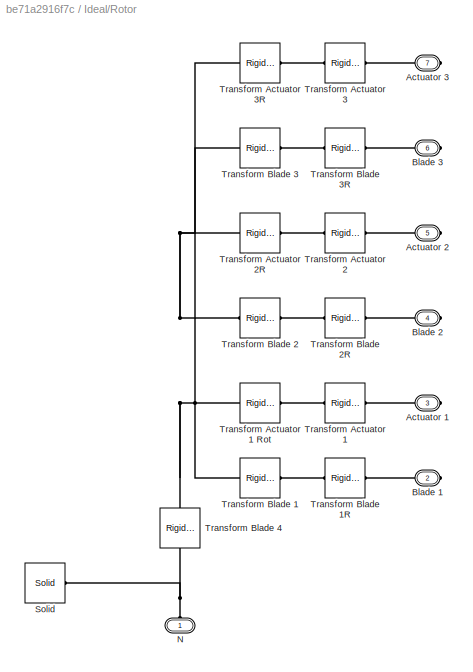
BLOCK [SubSystem] Ideal/Rotor
  Ports = [0, 0, 0, 0, 0, 1, 6]
  RequestExecContextInheritance = off
  Variant = off
BLOCK [PMIOPort] Ideal/Rotor/Actuator 1
  Port = 3
  Side = Right
BLOCK [PMIOPort] Ideal/Rotor/Actuator 2
  Port = 5
  Side = Right
BLOCK [PMIOPort] Ideal/Rotor/Actuator 3
  Port = 7
  Side = Right
BLOCK [PMIOPort] Ideal/Rotor/Blade 1
  Port = 2
  Side = Right
BLOCK [PMIOPort] Ideal/Rotor/Blade 2
  Port = 4
  Side = Right
BLOCK [PMIOPort] Ideal/Rotor/Blade 3
  Port = 6
  Side = Right
BLOCK [PMIOPort] Ideal/Rotor/N
  Port = 1
  Side = Left
BLOCK [Reference] Ideal/Rotor/Solid  REF=sm_lib/Body Elements/Solid
  Ports = [0, 0, 0, 0, 0, 0, 1]
  SourceBlock = sm_lib/Body Elements/Solid
  SourceType = Solid
BLOCK [Reference] Ideal/Rotor/Transform Actuator 1  REF=sm_lib/Frames and
Transforms/Rigid
Transform
  Ports = [0, 0, 0, 0, 0, 1, 1]
  SourceBlock = sm_lib/Frames and\nTransforms/Rigid\nTransform
  SourceType = Rigid\nTransform
BLOCK [Reference] Ideal/Rotor/Transform Actuator 1 Rot  REF=sm_lib/Frames and
Transforms/Rigid
Transform
  Ports = [0, 0, 0, 0, 0, 1, 1]
  SourceBlock = sm_lib/Frames and\nTransforms/Rigid\nTransform
  SourceType = Rigid\nTransform
BLOCK [Reference] Ideal/Rotor/Transform Actuator 2  REF=sm_lib/Frames and
Transforms/Rigid
Transform
  Ports = [0, 0, 0, 0, 0, 1, 1]
  SourceBlock = sm_lib/Frames and\nTransforms/Rigid\nTransform
  SourceType = Rigid\nTransform
BLOCK [Reference] Ideal/Rotor/Transform Actuator 2R  REF=sm_lib/Frames and
Transforms/Rigid
Transform
  Ports = [0, 0, 0, 0, 0, 1, 1]
  SourceBlock = sm_lib/Frames and\nTransforms/Rigid\nTransform
  SourceType = Rigid\nTransform
BLOCK [Reference] Ideal/Rotor/Transform Actuator 3  REF=sm_lib/Frames and
Transforms/Rigid
Transform
  Ports = [0, 0, 0, 0, 0, 1, 1]
  SourceBlock = sm_lib/Frames and\nTransforms/Rigid\nTransform
  SourceType = Rigid\nTransform
BLOCK [Reference] Ideal/Rotor/Transform Actuator 3R  REF=sm_lib/Frames and
Transforms/Rigid
Transform
  Ports = [0, 0, 0, 0, 0, 1, 1]
  SourceBlock = sm_lib/Frames and\nTransforms/Rigid\nTransform
  SourceType = Rigid\nTransform
BLOCK [Reference] Ideal/Rotor/Transform Blade 1  REF=sm_lib/Frames and
Transforms/Rigid
Transform
  Ports = [0, 0, 0, 0, 0, 1, 1]
  SourceBlock = sm_lib/Frames and\nTransforms/Rigid\nTransform
  SourceType = Rigid\nTransform
BLOCK [Reference] Ideal/Rotor/Transform Blade 1R  REF=sm_lib/Frames and
Transforms/Rigid
Transform
  Ports = [0, 0, 0, 0, 0, 1, 1]
  SourceBlock = sm_lib/Frames and\nTransforms/Rigid\nTransform
  SourceType = Rigid\nTransform
BLOCK [Reference] Ideal/Rotor/Transform Blade 2  REF=sm_lib/Frames and
Transforms/Rigid
Transform
  Ports = [0, 0, 0, 0, 0, 1, 1]
  SourceBlock = sm_lib/Frames and\nTransforms/Rigid\nTransform
  SourceType = Rigid\nTransform
BLOCK [Reference] Ideal/Rotor/Transform Blade 2R  REF=sm_lib/Frames and
Transforms/Rigid
Transform
  Ports = [0, 0, 0, 0, 0, 1, 1]
  SourceBlock = sm_lib/Frames and\nTransforms/Rigid\nTransform
  SourceType = Rigid\nTransform
BLOCK [Reference] Ideal/Rotor/Transform Blade 3  REF=sm_lib/Frames and
Transforms/Rigid
Transform
  Ports = [0, 0, 0, 0, 0, 1, 1]
  SourceBlock = sm_lib/Frames and\nTransforms/Rigid\nTransform
  SourceType = Rigid\nTransform
BLOCK [Reference] Ideal/Rotor/Transform Blade 3R  REF=sm_lib/Frames and
Transforms/Rigid
Transform
  Ports = [0, 0, 0, 0, 0, 1, 1]
  SourceBlock = sm_lib/Frames and\nTransforms/Rigid\nTransform
  SourceType = Rigid\nTransform
BLOCK [Reference] Ideal/Rotor/Transform Blade 4  REF=sm_lib/Frames and
Transforms/Rigid
Transform
  Ports = [0, 0, 0, 0, 0, 1, 1]
  SourceBlock = sm_lib/Frames and\nTransforms/Rigid\nTransform
  SourceType = Rigid\nTransform
BLOCK [SubSystem] Locked
  Ports = [0, 0, 0, 0, 0, 7, 1]
  RequestExecContextInheritance = off
  Variant = off
BLOCK [PMIOPort] Locked/B1
  Port = 2
  Side = Left
  Tag = PMCPort
BLOCK [PMIOPort] Locked/B2
  Port = 4
  Side = Left
  Tag = PMCPort
BLOCK [PMIOPort] Locked/B3
  Port = 6
  Side = Left
  Tag = PMCPort
BLOCK [PMIOPort] Locked/BPA1
  Port = 3
  Side = Left
  Tag = PMCPort
BLOCK [PMIOPort] Locked/BPA2
  Port = 5
  Side = Left
  Tag = PMCPort
BLOCK [PMIOPort] Locked/BPA3
  Port = 8
  Side = Left
  Tag = PMCPort
BLOCK [SubSystem] Locked/Blade Pitch Sensing
  Ports = []
  RequestExecContextInheritance = off
  Variant = off
BLOCK [From] Locked/Blade Pitch Sensing/From_Blade_Bearing_Load_1
  CloseFcn = tagdialog Close
  GotoTag = Blade_Bearing_Load_1
  TagVisibility = global
BLOCK [From] Locked/Blade Pitch Sensing/From_Blade_Bearing_Load_2
  CloseFcn = tagdialog Close
  GotoTag = Blade_Bearing_Load_2
  TagVisibility = global
BLOCK [From] Locked/Blade Pitch Sensing/From_Blade_Bearing_Load_3
  CloseFcn = tagdialog Close
  GotoTag = Blade_Bearing_Load_3
  TagVisibility = global
BLOCK [From] Locked/Blade Pitch Sensing/From_Blade_Pitch_1
  CloseFcn = tagdialog Close
  GotoTag = Blade_Pitch_1
  TagVisibility = global
BLOCK [From] Locked/Blade Pitch Sensing/From_Blade_Pitch_2
  CloseFcn = tagdialog Close
  GotoTag = Blade_Pitch_2
  TagVisibility = global
BLOCK [From] Locked/Blade Pitch Sensing/From_Blade_Pitch_3
  CloseFcn = tagdialog Close
  GotoTag = Blade_Pitch_3
  TagVisibility = global
BLOCK [Goto] Locked/Blade Pitch Sensing/Goto_Blade_Bearing_Load
  GotoTag = Blade_Bearing_Loads
  TagVisibility = global
BLOCK [Goto] Locked/Blade Pitch Sensing/Goto_Blade_Pitch
  GotoTag = Blade_Pitch
  TagVisibility = global
BLOCK [Mux] Locked/Blade Pitch Sensing/Mux
  DisplayOption = bar
  Inputs = 3
  Ports = [3, 1]
BLOCK [Mux] Locked/Blade Pitch Sensing/Mux1
  DisplayOption = bar
  Inputs = 3
  Ports = [3, 1]
BLOCK [Constant] Locked/Cylinder Extension and Cylinder Extension Rate (3x)
  Value = [0 0 0 0 0 0]
BLOCK [SubSystem] Locked/Linkage1
  Ports = [0, 0, 0, 0, 0, 1, 1]
  RequestExecContextInheritance = off
  Variant = off
BLOCK [PMIOPort] Locked/Linkage1/BPA
  Port = 2
  Side = Right
BLOCK [SubSystem] Locked/Linkage1/Cylinder
  Ports = [0, 0, 0, 0, 0, 1, 1]
  RequestExecContextInheritance = off
  Variant = off
BLOCK [PMIOPort] Locked/Linkage1/Cylinder/Rod
  Port = 1
  Side = Left
BLOCK [PMIOPort] Locked/Linkage1/Cylinder/Rotor
  Port = 2
  Side = Right
BLOCK [Reference] Locked/Linkage1/Cylinder/Solid  REF=sm_lib/Body Elements/Solid
  Ports = [0, 0, 0, 0, 0, 0, 1]
  SourceBlock = sm_lib/Body Elements/Solid
  SourceType = Solid
BLOCK [Reference] Locked/Linkage1/Cylinder/Transform ActCylCG  REF=sm_lib/Frames and
Transforms/Rigid
Transform
  Ports = [0, 0, 0, 0, 0, 1, 1]
  SourceBlock = sm_lib/Frames and\nTransforms/Rigid\nTransform
  SourceType = Rigid\nTransform
BLOCK [Reference] Locked/Linkage1/Cylinder/Transform ActCylCG1  REF=sm_lib/Frames and
Transforms/Rigid
Transform
  Ports = [0, 0, 0, 0, 0, 1, 1]
  SourceBlock = sm_lib/Frames and\nTransforms/Rigid\nTransform
  SourceType = Rigid\nTransform
BLOCK [Reference] Locked/Linkage1/Prismatic  Joint  REF=sm_lib/Joints/Prismatic
Joint
  Ports = [0, 0, 0, 0, 0, 1, 1]
  SourceBlock = sm_lib/Joints/Prismatic\nJoint
  SourceType = Prismatic\nJoint
BLOCK [PMIOPort] Locked/Linkage1/RPA
  Port = 1
  Side = Left
BLOCK [SubSystem] Locked/Linkage1/Rod
  Ports = [0, 0, 0, 0, 0, 1, 1]
  RequestExecContextInheritance = off
  Variant = off
BLOCK [PMIOPort] Locked/Linkage1/Rod/Blade
  Port = 1
  Side = Left
BLOCK [PMIOPort] Locked/Linkage1/Rod/Cyl
  Port = 2
  Side = Right
BLOCK [Reference] Locked/Linkage1/Rod/Solid  REF=sm_lib/Body Elements/Solid
  Ports = [0, 0, 0, 0, 0, 0, 1]
  SourceBlock = sm_lib/Body Elements/Solid
  SourceType = Solid
BLOCK [Reference] Locked/Linkage1/Rod/Transform ActCylCG  REF=sm_lib/Frames and
Transforms/Rigid
Transform
  Ports = [0, 0, 0, 0, 0, 1, 1]
  SourceBlock = sm_lib/Frames and\nTransforms/Rigid\nTransform
  SourceType = Rigid\nTransform
BLOCK [Reference] Locked/Linkage1/Rod/Transform ActCylCG1  REF=sm_lib/Frames and
Transforms/Rigid
Transform
  Ports = [0, 0, 0, 0, 0, 1, 1]
  SourceBlock = sm_lib/Frames and\nTransforms/Rigid\nTransform
  SourceType = Rigid\nTransform
BLOCK [Reference] Locked/Linkage1/Spherical  Joint  REF=sm_lib/Joints/Spherical
Joint
  Ports = [0, 0, 0, 0, 0, 1, 1]
  SourceBlock = sm_lib/Joints/Spherical\nJoint
  SourceType = Spherical\nJoint
BLOCK [Reference] Locked/Linkage1/Universal  Joint  REF=sm_lib/Joints/Universal
Joint
  Ports = [0, 0, 0, 0, 0, 1, 1]
  SourceBlock = sm_lib/Joints/Universal\nJoint
  SourceType = Universal\nJoint
BLOCK [SubSystem] Locked/Linkage2
  Ports = [0, 0, 0, 0, 0, 1, 1]
  RequestExecContextInheritance = off
  Variant = off
BLOCK [PMIOPort] Locked/Linkage2/BPA
  Port = 2
  Side = Right
BLOCK [SubSystem] Locked/Linkage2/Cylinder
  Ports = [0, 0, 0, 0, 0, 1, 1]
  RequestExecContextInheritance = off
  Variant = off
BLOCK [PMIOPort] Locked/Linkage2/Cylinder/Rod
  Port = 1
  Side = Left
BLOCK [PMIOPort] Locked/Linkage2/Cylinder/Rotor
  Port = 2
  Side = Right
BLOCK [Reference] Locked/Linkage2/Cylinder/Solid  REF=sm_lib/Body Elements/Solid
  Ports = [0, 0, 0, 0, 0, 0, 1]
  SourceBlock = sm_lib/Body Elements/Solid
  SourceType = Solid
BLOCK [Reference] Locked/Linkage2/Cylinder/Transform ActCylCG  REF=sm_lib/Frames and
Transforms/Rigid
Transform
  Ports = [0, 0, 0, 0, 0, 1, 1]
  SourceBlock = sm_lib/Frames and\nTransforms/Rigid\nTransform
  SourceType = Rigid\nTransform
BLOCK [Reference] Locked/Linkage2/Cylinder/Transform ActCylCG1  REF=sm_lib/Frames and
Transforms/Rigid
Transform
  Ports = [0, 0, 0, 0, 0, 1, 1]
  SourceBlock = sm_lib/Frames and\nTransforms/Rigid\nTransform
  SourceType = Rigid\nTransform
BLOCK [Reference] Locked/Linkage2/Prismatic  Joint  REF=sm_lib/Joints/Prismatic
Joint
  Ports = [0, 0, 0, 0, 0, 1, 1]
  SourceBlock = sm_lib/Joints/Prismatic\nJoint
  SourceType = Prismatic\nJoint
BLOCK [PMIOPort] Locked/Linkage2/RPA
  Port = 1
  Side = Left
BLOCK [SubSystem] Locked/Linkage2/Rod
  Ports = [0, 0, 0, 0, 0, 1, 1]
  RequestExecContextInheritance = off
  Variant = off
BLOCK [PMIOPort] Locked/Linkage2/Rod/Blade
  Port = 1
  Side = Left
BLOCK [PMIOPort] Locked/Linkage2/Rod/Cyl
  Port = 2
  Side = Right
BLOCK [Reference] Locked/Linkage2/Rod/Solid  REF=sm_lib/Body Elements/Solid
  Ports = [0, 0, 0, 0, 0, 0, 1]
  SourceBlock = sm_lib/Body Elements/Solid
  SourceType = Solid
BLOCK [Reference] Locked/Linkage2/Rod/Transform ActCylCG  REF=sm_lib/Frames and
Transforms/Rigid
Transform
  Ports = [0, 0, 0, 0, 0, 1, 1]
  SourceBlock = sm_lib/Frames and\nTransforms/Rigid\nTransform
  SourceType = Rigid\nTransform
BLOCK [Reference] Locked/Linkage2/Rod/Transform ActCylCG1  REF=sm_lib/Frames and
Transforms/Rigid
Transform
  Ports = [0, 0, 0, 0, 0, 1, 1]
  SourceBlock = sm_lib/Frames and\nTransforms/Rigid\nTransform
  SourceType = Rigid\nTransform
BLOCK [Reference] Locked/Linkage2/Spherical  Joint  REF=sm_lib/Joints/Spherical
Joint
  Ports = [0, 0, 0, 0, 0, 1, 1]
  SourceBlock = sm_lib/Joints/Spherical\nJoint
  SourceType = Spherical\nJoint
BLOCK [Reference] Locked/Linkage2/Universal  Joint  REF=sm_lib/Joints/Universal
Joint
  Ports = [0, 0, 0, 0, 0, 1, 1]
  SourceBlock = sm_lib/Joints/Universal\nJoint
  SourceType = Universal\nJoint
BLOCK [SubSystem] Locked/Linkage3
  Ports = [0, 0, 0, 0, 0, 1, 1]
  RequestExecContextInheritance = off
  Variant = off
BLOCK [PMIOPort] Locked/Linkage3/BPA
  Port = 2
  Side = Right
BLOCK [SubSystem] Locked/Linkage3/Cylinder
  Ports = [0, 0, 0, 0, 0, 1, 1]
  RequestExecContextInheritance = off
  Variant = off
BLOCK [PMIOPort] Locked/Linkage3/Cylinder/Rod
  Port = 1
  Side = Left
BLOCK [PMIOPort] Locked/Linkage3/Cylinder/Rotor
  Port = 2
  Side = Right
BLOCK [Reference] Locked/Linkage3/Cylinder/Solid  REF=sm_lib/Body Elements/Solid
  Ports = [0, 0, 0, 0, 0, 0, 1]
  SourceBlock = sm_lib/Body Elements/Solid
  SourceType = Solid
BLOCK [Reference] Locked/Linkage3/Cylinder/Transform ActCylCG  REF=sm_lib/Frames and
Transforms/Rigid
Transform
  Ports = [0, 0, 0, 0, 0, 1, 1]
  SourceBlock = sm_lib/Frames and\nTransforms/Rigid\nTransform
  SourceType = Rigid\nTransform
BLOCK [Reference] Locked/Linkage3/Cylinder/Transform ActCylCG1  REF=sm_lib/Frames and
Transforms/Rigid
Transform
  Ports = [0, 0, 0, 0, 0, 1, 1]
  SourceBlock = sm_lib/Frames and\nTransforms/Rigid\nTransform
  SourceType = Rigid\nTransform
BLOCK [Reference] Locked/Linkage3/Prismatic  Joint  REF=sm_lib/Joints/Prismatic
Joint
  Ports = [0, 0, 0, 0, 0, 1, 1]
  SourceBlock = sm_lib/Joints/Prismatic\nJoint
  SourceType = Prismatic\nJoint
BLOCK [PMIOPort] Locked/Linkage3/RPA
  Port = 1
  Side = Left
BLOCK [SubSystem] Locked/Linkage3/Rod
  Ports = [0, 0, 0, 0, 0, 1, 1]
  RequestExecContextInheritance = off
  Variant = off
BLOCK [PMIOPort] Locked/Linkage3/Rod/Blade
  Port = 1
  Side = Left
BLOCK [PMIOPort] Locked/Linkage3/Rod/Cyl
  Port = 2
  Side = Right
BLOCK [Reference] Locked/Linkage3/Rod/Solid  REF=sm_lib/Body Elements/Solid
  Ports = [0, 0, 0, 0, 0, 0, 1]
  SourceBlock = sm_lib/Body Elements/Solid
  SourceType = Solid
BLOCK [Reference] Locked/Linkage3/Rod/Transform ActCylCG  REF=sm_lib/Frames and
Transforms/Rigid
Transform
  Ports = [0, 0, 0, 0, 0, 1, 1]
  SourceBlock = sm_lib/Frames and\nTransforms/Rigid\nTransform
  SourceType = Rigid\nTransform
BLOCK [Reference] Locked/Linkage3/Rod/Transform ActCylCG1  REF=sm_lib/Frames and
Transforms/Rigid
Transform
  Ports = [0, 0, 0, 0, 0, 1, 1]
  SourceBlock = sm_lib/Frames and\nTransforms/Rigid\nTransform
  SourceType = Rigid\nTransform
BLOCK [Reference] Locked/Linkage3/Spherical  Joint  REF=sm_lib/Joints/Spherical
Joint
  Ports = [0, 0, 0, 0, 0, 1, 1]
  SourceBlock = sm_lib/Joints/Spherical\nJoint
  SourceType = Spherical\nJoint
BLOCK [Reference] Locked/Linkage3/Universal  Joint  REF=sm_lib/Joints/Universal
Joint
  Ports = [0, 0, 0, 0, 0, 1, 1]
  SourceBlock = sm_lib/Joints/Universal\nJoint
  SourceType = Universal\nJoint
BLOCK [PMIOPort] Locked/N
  Port = 7
  Side = Right
  Tag = PMCPort
BLOCK [PMIOPort] Locked/PC
  Port = 1
  Side = Left
  Tag = PMCPort
BLOCK [SubSystem] Locked/Rev RB1
  Ports = [0, 0, 0, 0, 0, 1, 1]
  RequestExecContextInheritance = off
  Variant = off
BLOCK [PMIOPort] Locked/Rev RB1/B
  Port = 2
  Side = Right
BLOCK [Constant] Locked/Rev RB1/Constant
  Value = [0 0 0]
BLOCK [Constant] Locked/Rev RB1/Constant1
  Value = [0 0 0]
BLOCK [Constant] Locked/Rev RB1/Constant2
  Value = 0
BLOCK [PMIOPort] Locked/Rev RB1/F
  Port = 1
  Side = Left
BLOCK [Goto] Locked/Rev RB1/Goto_Blade_Bearing_Load
  GotoTag = Blade_Bearing_Load_1
  TagVisibility = global
BLOCK [Goto] Locked/Rev RB1/Goto_Blade_Pitch
  GotoTag = Blade_Pitch_1
  TagVisibility = global
BLOCK [Mux] Locked/Rev RB1/Mux
  DisplayOption = bar
  Inputs = 2
  Ports = [2, 1]
BLOCK [SubSystem] Locked/Rev RB2
  Ports = [0, 0, 0, 0, 0, 1, 1]
  RequestExecContextInheritance = off
  Variant = off
BLOCK [PMIOPort] Locked/Rev RB2/B
  Port = 2
  Side = Right
BLOCK [Constant] Locked/Rev RB2/Constant
  Value = [0 0 0]
BLOCK [Constant] Locked/Rev RB2/Constant1
  Value = [0 0 0]
BLOCK [Constant] Locked/Rev RB2/Constant2
  Value = 0
BLOCK [PMIOPort] Locked/Rev RB2/F
  Port = 1
  Side = Left
BLOCK [Goto] Locked/Rev RB2/Goto_Blade_Bearing_Load
  GotoTag = Blade_Bearing_Load_2
  TagVisibility = global
BLOCK [Goto] Locked/Rev RB2/Goto_Blade_Pitch
  GotoTag = Blade_Pitch_2
  TagVisibility = global
BLOCK [Mux] Locked/Rev RB2/Mux
  DisplayOption = bar
  Inputs = 2
  Ports = [2, 1]
BLOCK [SubSystem] Locked/Rev RB3
  Ports = [0, 0, 0, 0, 0, 1, 1]
  RequestExecContextInheritance = off
  Variant = off
BLOCK [PMIOPort] Locked/Rev RB3/B
  Port = 2
  Side = Right
BLOCK [Constant] Locked/Rev RB3/Constant
  Value = [0 0 0]
BLOCK [Constant] Locked/Rev RB3/Constant1
  Value = [0 0 0]
BLOCK [Constant] Locked/Rev RB3/Constant2
  Value = 0
BLOCK [PMIOPort] Locked/Rev RB3/F
  Port = 1
  Side = Left
BLOCK [Goto] Locked/Rev RB3/Goto_Blade_Bearing_Load
  GotoTag = Blade_Bearing_Load_3
  TagVisibility = global
BLOCK [Goto] Locked/Rev RB3/Goto_Blade_Pitch
  GotoTag = Blade_Pitch_3
  TagVisibility = global
BLOCK [Mux] Locked/Rev RB3/Mux
  DisplayOption = bar
  Inputs = 2
  Ports = [2, 1]
BLOCK [SubSystem] Locked/Rotor
  Ports = [0, 0, 0, 0, 0, 1, 6]
  RequestExecContextInheritance = off
  Variant = off
BLOCK [PMIOPort] Locked/Rotor/Actuator 1
  Port = 3
  Side = Right
BLOCK [PMIOPort] Locked/Rotor/Actuator 2
  Port = 5
  Side = Right
BLOCK [PMIOPort] Locked/Rotor/Actuator 3
  Port = 7
  Side = Right
BLOCK [PMIOPort] Locked/Rotor/Blade 1
  Port = 2
  Side = Right
BLOCK [PMIOPort] Locked/Rotor/Blade 2
  Port = 4
  Side = Right
BLOCK [PMIOPort] Locked/Rotor/Blade 3
  Port = 6
  Side = Right
BLOCK [PMIOPort] Locked/Rotor/N
  Port = 1
  Side = Left
BLOCK [Reference] Locked/Rotor/Solid  REF=sm_lib/Body Elements/Solid
  Ports = [0, 0, 0, 0, 0, 0, 1]
  SourceBlock = sm_lib/Body Elements/Solid
  SourceType = Solid
BLOCK [Reference] Locked/Rotor/Transform Actuator 1  REF=sm_lib/Frames and
Transforms/Rigid
Transform
  Ports = [0, 0, 0, 0, 0, 1, 1]
  SourceBlock = sm_lib/Frames and\nTransforms/Rigid\nTransform
  SourceType = Rigid\nTransform
BLOCK [Reference] Locked/Rotor/Transform Actuator 1 Rot  REF=sm_lib/Frames and
Transforms/Rigid
Transform
  Ports = [0, 0, 0, 0, 0, 1, 1]
  SourceBlock = sm_lib/Frames and\nTransforms/Rigid\nTransform
  SourceType = Rigid\nTransform
BLOCK [Reference] Locked/Rotor/Transform Actuator 2  REF=sm_lib/Frames and
Transforms/Rigid
Transform
  Ports = [0, 0, 0, 0, 0, 1, 1]
  SourceBlock = sm_lib/Frames and\nTransforms/Rigid\nTransform
  SourceType = Rigid\nTransform
BLOCK [Reference] Locked/Rotor/Transform Actuator 2R  REF=sm_lib/Frames and
Transforms/Rigid
Transform
  Ports = [0, 0, 0, 0, 0, 1, 1]
  SourceBlock = sm_lib/Frames and\nTransforms/Rigid\nTransform
  SourceType = Rigid\nTransform
BLOCK [Reference] Locked/Rotor/Transform Actuator 3  REF=sm_lib/Frames and
Transforms/Rigid
Transform
  Ports = [0, 0, 0, 0, 0, 1, 1]
  SourceBlock = sm_lib/Frames and\nTransforms/Rigid\nTransform
  SourceType = Rigid\nTransform
BLOCK [Reference] Locked/Rotor/Transform Actuator 3R  REF=sm_lib/Frames and
Transforms/Rigid
Transform
  Ports = [0, 0, 0, 0, 0, 1, 1]
  SourceBlock = sm_lib/Frames and\nTransforms/Rigid\nTransform
  SourceType = Rigid\nTransform
BLOCK [Reference] Locked/Rotor/Transform Blade 1  REF=sm_lib/Frames and
Transforms/Rigid
Transform
  Ports = [0, 0, 0, 0, 0, 1, 1]
  SourceBlock = sm_lib/Frames and\nTransforms/Rigid\nTransform
  SourceType = Rigid\nTransform
BLOCK [Reference] Locked/Rotor/Transform Blade 1R  REF=sm_lib/Frames and
Transforms/Rigid
Transform
  Ports = [0, 0, 0, 0, 0, 1, 1]
  SourceBlock = sm_lib/Frames and\nTransforms/Rigid\nTransform
  SourceType = Rigid\nTransform
BLOCK [Reference] Locked/Rotor/Transform Blade 2  REF=sm_lib/Frames and
Transforms/Rigid
Transform
  Ports = [0, 0, 0, 0, 0, 1, 1]
  SourceBlock = sm_lib/Frames and\nTransforms/Rigid\nTransform
  SourceType = Rigid\nTransform
BLOCK [Reference] Locked/Rotor/Transform Blade 2R  REF=sm_lib/Frames and
Transforms/Rigid
Transform
  Ports = [0, 0, 0, 0, 0, 1, 1]
  SourceBlock = sm_lib/Frames and\nTransforms/Rigid\nTransform
  SourceType = Rigid\nTransform
BLOCK [Reference] Locked/Rotor/Transform Blade 3  REF=sm_lib/Frames and
Transforms/Rigid
Transform
  Ports = [0, 0, 0, 0, 0, 1, 1]
  SourceBlock = sm_lib/Frames and\nTransforms/Rigid\nTransform
  SourceType = Rigid\nTransform
BLOCK [Reference] Locked/Rotor/Transform Blade 3R  REF=sm_lib/Frames and
Transforms/Rigid
Transform
  Ports = [0, 0, 0, 0, 0, 1, 1]
  SourceBlock = sm_lib/Frames and\nTransforms/Rigid\nTransform
  SourceType = Rigid\nTransform
BLOCK [Reference] Locked/Rotor/Transform Blade 4  REF=sm_lib/Frames and
Transforms/Rigid
Transform
  Ports = [0, 0, 0, 0, 0, 1, 1]
  SourceBlock = sm_lib/Frames and\nTransforms/Rigid\nTransform
  SourceType = Rigid\nTransform
BLOCK [Terminator] Locked/Terminator
BLOCK [TwoWayConnection] Locked/Two-Way Connection
  Ports = [1, 1, 0, 0, 0, 0, 1]
BLOCK [SubSystem] Pitch System
  BlockChoice = Ideal
  MemberBlocks = Hydraulic,Ideal,Locked
  Ports = [0, 0, 0, 0, 0, 7, 1]
  RequestExecContextInheritance = off
  ShowPortLabels = FromPortBlockName
  TemplateBlock = self
  Variant = off
BLOCK [PMIOPort] Pitch System/B1
  Port = 2
  Side = Left
BLOCK [PMIOPort] Pitch System/B2
  Port = 4
  Side = Left
BLOCK [PMIOPort] Pitch System/B3
  Port = 6
  Side = Left
BLOCK [PMIOPort] Pitch System/BPA1
  Port = 3
  Side = Left
BLOCK [PMIOPort] Pitch System/BPA2
  Port = 5
  Side = Left
BLOCK [PMIOPort] Pitch System/BPA3
  Port = 7
  Side = Left
BLOCK [Reference] Pitch System/Ideal  REF=Pitch_System_Lib/Ideal
  Ports = [0, 0, 0, 0, 0, 7, 1]
  SourceBlock = Pitch_System_Lib/Ideal
BLOCK [PMIOPort] Pitch System/N
  Port = 8
  Side = Right
BLOCK [PMIOPort] Pitch System/PC
  Port = 1
  Side = Left
ANNOTATION (root): <copyright redacted>
ANNOTATION Hydraulic: <copyright redacted>
ANNOTATION Ideal: <copyright redacted>
ANNOTATION Locked: <copyright redacted>
LINE Hydraulic/Blade Pitch Sensing/From_Blade_Bearing_Load_1:1 -> Hydraulic/Blade Pitch Sensing/Mux1:1
LINE Hydraulic/Blade Pitch Sensing/From_Blade_Bearing_Load_2:1 -> Hydraulic/Blade Pitch Sensing/Mux1:2
LINE Hydraulic/Blade Pitch Sensing/From_Blade_Bearing_Load_3:1 -> Hydraulic/Blade Pitch Sensing/Mux1:3
LINE Hydraulic/Blade Pitch Sensing/From_Blade_Pitch_1:1 -> Hydraulic/Blade Pitch Sensing/Mux:1
LINE Hydraulic/Blade Pitch Sensing/From_Blade_Pitch_2:1 -> Hydraulic/Blade Pitch Sensing/Mux:2
LINE Hydraulic/Blade Pitch Sensing/From_Blade_Pitch_3:1 -> Hydraulic/Blade Pitch Sensing/Mux:3
LINE Hydraulic/Blade Pitch Sensing/Mux1:1 -> Hydraulic/Blade Pitch Sensing/Goto_Blade_Bearing_Load:1
LINE Hydraulic/Blade Pitch Sensing/Mux:1 -> Hydraulic/Blade Pitch Sensing/Goto_Blade_Pitch:1
LINE Hydraulic/Rev RB1/Gain:1 -> Hydraulic/Rev RB1/Goto_Blade_Pitch:1
LINE Hydraulic/Rev RB1/Mux:1 -> Hydraulic/Rev RB1/Goto_Blade_Bearing_Load:1
LINE Hydraulic/Rev RB1/PS-Simulink Converter1:1 -> Hydraulic/Rev RB1/Mux:1
LINE Hydraulic/Rev RB1/PS-Simulink Converter2:1 -> Hydraulic/Rev RB1/Mux:2
LINE Hydraulic/Rev RB1/PS-Simulink Converter:1 -> Hydraulic/Rev RB1/Gain:1
LINE Hydraulic/Rev RB2/Gain:1 -> Hydraulic/Rev RB2/Goto_Blade_Pitch:1
LINE Hydraulic/Rev RB2/Mux:1 -> Hydraulic/Rev RB2/Goto_Blade_Bearing_Load:1
LINE Hydraulic/Rev RB2/PS-Simulink Converter1:1 -> Hydraulic/Rev RB2/Mux:1
LINE Hydraulic/Rev RB2/PS-Simulink Converter2:1 -> Hydraulic/Rev RB2/Mux:2
LINE Hydraulic/Rev RB2/PS-Simulink Converter:1 -> Hydraulic/Rev RB2/Gain:1
LINE Hydraulic/Rev RB3/Gain:1 -> Hydraulic/Rev RB3/Goto_Blade_Pitch:1
LINE Hydraulic/Rev RB3/Mux:1 -> Hydraulic/Rev RB3/Goto_Blade_Bearing_Load:1
LINE Hydraulic/Rev RB3/PS-Simulink Converter1:1 -> Hydraulic/Rev RB3/Mux:1
LINE Hydraulic/Rev RB3/PS-Simulink Converter2:1 -> Hydraulic/Rev RB3/Mux:2
LINE Hydraulic/Rev RB3/PS-Simulink Converter:1 -> Hydraulic/Rev RB3/Gain:1
LINE Ideal/Blade Pitch Sensing/From_Blade_Bearing_Load_1:1 -> Ideal/Blade Pitch Sensing/Mux1:1
LINE Ideal/Blade Pitch Sensing/From_Blade_Bearing_Load_2:1 -> Ideal/Blade Pitch Sensing/Mux1:2
LINE Ideal/Blade Pitch Sensing/From_Blade_Bearing_Load_3:1 -> Ideal/Blade Pitch Sensing/Mux1:3
LINE Ideal/Blade Pitch Sensing/From_Blade_Pitch_1:1 -> Ideal/Blade Pitch Sensing/Mux:1
LINE Ideal/Blade Pitch Sensing/From_Blade_Pitch_2:1 -> Ideal/Blade Pitch Sensing/Mux:2
LINE Ideal/Blade Pitch Sensing/From_Blade_Pitch_3:1 -> Ideal/Blade Pitch Sensing/Mux:3
LINE Ideal/Blade Pitch Sensing/Mux1:1 -> Ideal/Blade Pitch Sensing/Goto_Blade_Bearing_Load:1
LINE Ideal/Blade Pitch Sensing/Mux:1 -> Ideal/Blade Pitch Sensing/Goto_Blade_Pitch:1
LINE Ideal/Linkage1/Initial_Disp:1 -> Ideal/Linkage1/Sum:1
LINE Ideal/Linkage1/Mux:1 -> Ideal/Linkage1/Two-Way Connection:1
LINE Ideal/Linkage1/PS-Simulink Converter1:1 -> Ideal/Linkage1/Sum:2
LINE Ideal/Linkage1/PS-Simulink Converter:1 -> Ideal/Linkage1/Mux:2
LINE Ideal/Linkage1/Sum:1 -> Ideal/Linkage1/Mux:1
LINE Ideal/Linkage1/Two-Way Connection:1 -> Ideal/Linkage1/Simulink-PS Converter:1
LINE Ideal/Linkage2/Initial_Disp:1 -> Ideal/Linkage2/Sum:1
LINE Ideal/Linkage2/Mux:1 -> Ideal/Linkage2/Two-Way Connection:1
LINE Ideal/Linkage2/PS-Simulink Converter1:1 -> Ideal/Linkage2/Sum:2
LINE Ideal/Linkage2/PS-Simulink Converter:1 -> Ideal/Linkage2/Mux:2
LINE Ideal/Linkage2/Sum:1 -> Ideal/Linkage2/Mux:1
LINE Ideal/Linkage2/Two-Way Connection:1 -> Ideal/Linkage2/Simulink-PS Converter:1
LINE Ideal/Linkage3/Initial_Disp:1 -> Ideal/Linkage3/Sum:1
LINE Ideal/Linkage3/Mux:1 -> Ideal/Linkage3/Two-Way Connection:1
LINE Ideal/Linkage3/PS-Simulink Converter1:1 -> Ideal/Linkage3/Sum:2
LINE Ideal/Linkage3/PS-Simulink Converter:1 -> Ideal/Linkage3/Mux:2
LINE Ideal/Linkage3/Sum:1 -> Ideal/Linkage3/Mux:1
LINE Ideal/Linkage3/Two-Way Connection:1 -> Ideal/Linkage3/Simulink-PS Converter:1
LINE Ideal/Rev RB1/Gain:1 -> Ideal/Rev RB1/Goto_Blade_Pitch:1
LINE Ideal/Rev RB1/Mux:1 -> Ideal/Rev RB1/Goto_Blade_Bearing_Load:1
LINE Ideal/Rev RB1/PS-Simulink Converter1:1 -> Ideal/Rev RB1/Mux:1
LINE Ideal/Rev RB1/PS-Simulink Converter2:1 -> Ideal/Rev RB1/Mux:2
LINE Ideal/Rev RB1/PS-Simulink Converter:1 -> Ideal/Rev RB1/Gain:1
LINE Ideal/Rev RB2/Gain:1 -> Ideal/Rev RB2/Goto_Blade_Pitch:1
LINE Ideal/Rev RB2/Mux:1 -> Ideal/Rev RB2/Goto_Blade_Bearing_Load:1
LINE Ideal/Rev RB2/PS-Simulink Converter1:1 -> Ideal/Rev RB2/Mux:1
LINE Ideal/Rev RB2/PS-Simulink Converter2:1 -> Ideal/Rev RB2/Mux:2
LINE Ideal/Rev RB2/PS-Simulink Converter:1 -> Ideal/Rev RB2/Gain:1
LINE Ideal/Rev RB3/Gain:1 -> Ideal/Rev RB3/Goto_Blade_Pitch:1
LINE Ideal/Rev RB3/Mux:1 -> Ideal/Rev RB3/Goto_Blade_Bearing_Load:1
LINE Ideal/Rev RB3/PS-Simulink Converter1:1 -> Ideal/Rev RB3/Mux:1
LINE Ideal/Rev RB3/PS-Simulink Converter2:1 -> Ideal/Rev RB3/Mux:2
LINE Ideal/Rev RB3/PS-Simulink Converter:1 -> Ideal/Rev RB3/Gain:1
LINE Locked/Blade Pitch Sensing/From_Blade_Bearing_Load_1:1 -> Locked/Blade Pitch Sensing/Mux1:1
LINE Locked/Blade Pitch Sensing/From_Blade_Bearing_Load_2:1 -> Locked/Blade Pitch Sensing/Mux1:2
LINE Locked/Blade Pitch Sensing/From_Blade_Bearing_Load_3:1 -> Locked/Blade Pitch Sensing/Mux1:3
LINE Locked/Blade Pitch Sensing/From_Blade_Pitch_1:1 -> Locked/Blade Pitch Sensing/Mux:1
LINE Locked/Blade Pitch Sensing/From_Blade_Pitch_2:1 -> Locked/Blade Pitch Sensing/Mux:2
LINE Locked/Blade Pitch Sensing/From_Blade_Pitch_3:1 -> Locked/Blade Pitch Sensing/Mux:3
LINE Locked/Blade Pitch Sensing/Mux1:1 -> Locked/Blade Pitch Sensing/Goto_Blade_Bearing_Load:1
LINE Locked/Blade Pitch Sensing/Mux:1 -> Locked/Blade Pitch Sensing/Goto_Blade_Pitch:1
LINE Locked/Cylinder Extension and Cylinder Extension Rate (3x):1 -> Locked/Two-Way Connection:1
LINE Locked/Rev RB1/Constant1:1 -> Locked/Rev RB1/Mux:2
LINE Locked/Rev RB1/Constant2:1 -> Locked/Rev RB1/Goto_Blade_Pitch:1
LINE Locked/Rev RB1/Constant:1 -> Locked/Rev RB1/Mux:1
LINE Locked/Rev RB1/Mux:1 -> Locked/Rev RB1/Goto_Blade_Bearing_Load:1
LINE Locked/Rev RB2/Constant1:1 -> Locked/Rev RB2/Mux:2
LINE Locked/Rev RB2/Constant2:1 -> Locked/Rev RB2/Goto_Blade_Pitch:1
LINE Locked/Rev RB2/Constant:1 -> Locked/Rev RB2/Mux:1
LINE Locked/Rev RB2/Mux:1 -> Locked/Rev RB2/Goto_Blade_Bearing_Load:1
LINE Locked/Rev RB3/Constant1:1 -> Locked/Rev RB3/Mux:2
LINE Locked/Rev RB3/Constant2:1 -> Locked/Rev RB3/Goto_Blade_Pitch:1
LINE Locked/Rev RB3/Constant:1 -> Locked/Rev RB3/Mux:1
LINE Locked/Rev RB3/Mux:1 -> Locked/Rev RB3/Goto_Blade_Bearing_Load:1
LINE Locked/Two-Way Connection:1 -> Locked/Terminator:1
PLINE Hydraulic/B1:RConn1 -- Hydraulic/Rev RB1:LConn1
PLINE Hydraulic/B2:RConn1 -- Hydraulic/Rev RB2:LConn1
PLINE Hydraulic/B3:RConn1 -- Hydraulic/Rev RB3:LConn1
PLINE Hydraulic/BPA1:RConn1 -- Hydraulic/Linkage1:RConn1
PLINE Hydraulic/BPA2:RConn1 -- Hydraulic/Linkage2:RConn1
PLINE Hydraulic/BPA3:RConn1 -- Hydraulic/Linkage3:RConn1
PLINE Hydraulic/Hydraulic:LConn1 -- Hydraulic/PC:RConn1
PLINE Hydraulic/Hydraulic:RConn1 -- Hydraulic/Linkage1:RConn2
PLINE Hydraulic/Hydraulic:RConn2 -- Hydraulic/Linkage2:RConn2
PLINE Hydraulic/Hydraulic:RConn3 -- Hydraulic/Linkage3:RConn2
PLINE Hydraulic/Linkage1/BPA:RConn1 -- Hydraulic/Linkage1/Universal  Joint:RConn1
PLINE Hydraulic/Linkage1/Cylinder/Rod:RConn1 -- Hydraulic/Linkage1/Cylinder/Transform ActCylCG1:RConn1
PLINE Hydraulic/Linkage1/Cylinder/Rotor:RConn1 -- Hydraulic/Linkage1/Cylinder/Transform ActCylCG:LConn1
PNET net1: Hydraulic/Linkage1/Cylinder/Solid:RConn1 -- Hydraulic/Linkage1/Cylinder/Transform ActCylCG1:LConn1 -- Hydraulic/Linkage1/Cylinder/Transform ActCylCG:RConn1
PLINE Hydraulic/Linkage1/Cylinder:LConn1 -- Hydraulic/Linkage1/Prismatic  Joint:LConn1
PLINE Hydraulic/Linkage1/Cylinder:RConn1 -- Hydraulic/Linkage1/Spherical  Joint:LConn1
PLINE Hydraulic/Linkage1/Mechanical Translational Reference:LConn1 -- Hydraulic/Linkage1/Translational Simscape Intf:LConn2
PLINE Hydraulic/Linkage1/PC:RConn1 -- Hydraulic/Linkage1/Translational Simscape Intf:RConn2
PLINE Hydraulic/Linkage1/Prismatic  Joint:LConn2 -- Hydraulic/Linkage1/Translational Simscape Intf:RConn1
PLINE Hydraulic/Linkage1/Prismatic  Joint:RConn1 -- Hydraulic/Linkage1/Rod:RConn1
PLINE Hydraulic/Linkage1/Prismatic  Joint:RConn2 -- Hydraulic/Linkage1/Translational Simscape Intf:LConn1
PLINE Hydraulic/Linkage1/RPA:RConn1 -- Hydraulic/Linkage1/Spherical  Joint:RConn1
PLINE Hydraulic/Linkage1/Rod/Blade:RConn1 -- Hydraulic/Linkage1/Rod/Transform ActCylCG1:RConn1
PLINE Hydraulic/Linkage1/Rod/Cyl:RConn1 -- Hydraulic/Linkage1/Rod/Transform ActCylCG:LConn1
PNET net2: Hydraulic/Linkage1/Rod/Solid:RConn1 -- Hydraulic/Linkage1/Rod/Transform ActCylCG1:LConn1 -- Hydraulic/Linkage1/Rod/Transform ActCylCG:RConn1
PLINE Hydraulic/Linkage1/Rod:LConn1 -- Hydraulic/Linkage1/Universal  Joint:LConn1
PLINE Hydraulic/Linkage1/Translational Simscape Intf/C:RConn1 -- Hydraulic/Linkage1/Translational Simscape Intf/Ideal Force Sensor:RConn1
PLINE Hydraulic/Linkage1/Translational Simscape Intf/F:RConn1 -- Hydraulic/Linkage1/Translational Simscape Intf/Ideal Force Sensor:RConn2
PLINE Hydraulic/Linkage1/Translational Simscape Intf/Ideal Force Sensor:LConn1 -- Hydraulic/Linkage1/Translational Simscape Intf/Ideal Translational Velocity Source:RConn2
PLINE Hydraulic/Linkage1/Translational Simscape Intf/Ideal Translational Velocity Source:LConn1 -- Hydraulic/Linkage1/Translational Simscape Intf/R:RConn1
PLINE Hydraulic/Linkage1/Translational Simscape Intf/Ideal Translational Velocity Source:RConn1 -- Hydraulic/Linkage1/Translational Simscape Intf/V:RConn1
PLINE Hydraulic/Linkage1:LConn1 -- Hydraulic/Rotor:RConn2
PLINE Hydraulic/Linkage2/BPA:RConn1 -- Hydraulic/Linkage2/Universal  Joint:RConn1
PLINE Hydraulic/Linkage2/Cylinder/Rod:RConn1 -- Hydraulic/Linkage2/Cylinder/Transform ActCylCG1:RConn1
PLINE Hydraulic/Linkage2/Cylinder/Rotor:RConn1 -- Hydraulic/Linkage2/Cylinder/Transform ActCylCG:LConn1
PNET net3: Hydraulic/Linkage2/Cylinder/Solid:RConn1 -- Hydraulic/Linkage2/Cylinder/Transform ActCylCG1:LConn1 -- Hydraulic/Linkage2/Cylinder/Transform ActCylCG:RConn1
PLINE Hydraulic/Linkage2/Cylinder:LConn1 -- Hydraulic/Linkage2/Prismatic  Joint:LConn1
PLINE Hydraulic/Linkage2/Cylinder:RConn1 -- Hydraulic/Linkage2/Spherical  Joint:LConn1
PLINE Hydraulic/Linkage2/Mechanical Translational Reference:LConn1 -- Hydraulic/Linkage2/Translational Simscape Intf:LConn2
PLINE Hydraulic/Linkage2/PC:RConn1 -- Hydraulic/Linkage2/Translational Simscape Intf:RConn2
PLINE Hydraulic/Linkage2/Prismatic  Joint:LConn2 -- Hydraulic/Linkage2/Translational Simscape Intf:RConn1
PLINE Hydraulic/Linkage2/Prismatic  Joint:RConn1 -- Hydraulic/Linkage2/Rod:RConn1
PLINE Hydraulic/Linkage2/Prismatic  Joint:RConn2 -- Hydraulic/Linkage2/Translational Simscape Intf:LConn1
PLINE Hydraulic/Linkage2/RPA:RConn1 -- Hydraulic/Linkage2/Spherical  Joint:RConn1
PLINE Hydraulic/Linkage2/Rod/Blade:RConn1 -- Hydraulic/Linkage2/Rod/Transform ActCylCG1:RConn1
PLINE Hydraulic/Linkage2/Rod/Cyl:RConn1 -- Hydraulic/Linkage2/Rod/Transform ActCylCG:LConn1
PNET net4: Hydraulic/Linkage2/Rod/Solid:RConn1 -- Hydraulic/Linkage2/Rod/Transform ActCylCG1:LConn1 -- Hydraulic/Linkage2/Rod/Transform ActCylCG:RConn1
PLINE Hydraulic/Linkage2/Rod:LConn1 -- Hydraulic/Linkage2/Universal  Joint:LConn1
PLINE Hydraulic/Linkage2/Translational Simscape Intf/C:RConn1 -- Hydraulic/Linkage2/Translational Simscape Intf/Ideal Force Sensor:RConn1
PLINE Hydraulic/Linkage2/Translational Simscape Intf/F:RConn1 -- Hydraulic/Linkage2/Translational Simscape Intf/Ideal Force Sensor:RConn2
PLINE Hydraulic/Linkage2/Translational Simscape Intf/Ideal Force Sensor:LConn1 -- Hydraulic/Linkage2/Translational Simscape Intf/Ideal Translational Velocity Source:RConn2
PLINE Hydraulic/Linkage2/Translational Simscape Intf/Ideal Translational Velocity Source:LConn1 -- Hydraulic/Linkage2/Translational Simscape Intf/R:RConn1
PLINE Hydraulic/Linkage2/Translational Simscape Intf/Ideal Translational Velocity Source:RConn1 -- Hydraulic/Linkage2/Translational Simscape Intf/V:RConn1
PLINE Hydraulic/Linkage2:LConn1 -- Hydraulic/Rotor:RConn4
PLINE Hydraulic/Linkage3/BPA:RConn1 -- Hydraulic/Linkage3/Universal  Joint:RConn1
PLINE Hydraulic/Linkage3/Cylinder/Rod:RConn1 -- Hydraulic/Linkage3/Cylinder/Transform ActCylCG1:RConn1
PLINE Hydraulic/Linkage3/Cylinder/Rotor:RConn1 -- Hydraulic/Linkage3/Cylinder/Transform ActCylCG:LConn1
PNET net5: Hydraulic/Linkage3/Cylinder/Solid:RConn1 -- Hydraulic/Linkage3/Cylinder/Transform ActCylCG1:LConn1 -- Hydraulic/Linkage3/Cylinder/Transform ActCylCG:RConn1
PLINE Hydraulic/Linkage3/Cylinder:LConn1 -- Hydraulic/Linkage3/Prismatic  Joint:LConn1
PLINE Hydraulic/Linkage3/Cylinder:RConn1 -- Hydraulic/Linkage3/Spherical  Joint:LConn1
PLINE Hydraulic/Linkage3/Mechanical Translational Reference:LConn1 -- Hydraulic/Linkage3/Translational Simscape Intf:LConn2
PLINE Hydraulic/Linkage3/PC:RConn1 -- Hydraulic/Linkage3/Translational Simscape Intf:RConn2
PLINE Hydraulic/Linkage3/Prismatic  Joint:LConn2 -- Hydraulic/Linkage3/Translational Simscape Intf:RConn1
PLINE Hydraulic/Linkage3/Prismatic  Joint:RConn1 -- Hydraulic/Linkage3/Rod:RConn1
PLINE Hydraulic/Linkage3/Prismatic  Joint:RConn2 -- Hydraulic/Linkage3/Translational Simscape Intf:LConn1
PLINE Hydraulic/Linkage3/RPA:RConn1 -- Hydraulic/Linkage3/Spherical  Joint:RConn1
PLINE Hydraulic/Linkage3/Rod/Blade:RConn1 -- Hydraulic/Linkage3/Rod/Transform ActCylCG1:RConn1
PLINE Hydraulic/Linkage3/Rod/Cyl:RConn1 -- Hydraulic/Linkage3/Rod/Transform ActCylCG:LConn1
PNET net6: Hydraulic/Linkage3/Rod/Solid:RConn1 -- Hydraulic/Linkage3/Rod/Transform ActCylCG1:LConn1 -- Hydraulic/Linkage3/Rod/Transform ActCylCG:RConn1
PLINE Hydraulic/Linkage3/Rod:LConn1 -- Hydraulic/Linkage3/Universal  Joint:LConn1
PLINE Hydraulic/Linkage3/Translational Simscape Intf/C:RConn1 -- Hydraulic/Linkage3/Translational Simscape Intf/Ideal Force Sensor:RConn1
PLINE Hydraulic/Linkage3/Translational Simscape Intf/F:RConn1 -- Hydraulic/Linkage3/Translational Simscape Intf/Ideal Force Sensor:RConn2
PLINE Hydraulic/Linkage3/Translational Simscape Intf/Ideal Force Sensor:LConn1 -- Hydraulic/Linkage3/Translational Simscape Intf/Ideal Translational Velocity Source:RConn2
PLINE Hydraulic/Linkage3/Translational Simscape Intf/Ideal Translational Velocity Source:LConn1 -- Hydraulic/Linkage3/Translational Simscape Intf/R:RConn1
PLINE Hydraulic/Linkage3/Translational Simscape Intf/Ideal Translational Velocity Source:RConn1 -- Hydraulic/Linkage3/Translational Simscape Intf/V:RConn1
PLINE Hydraulic/Linkage3:LConn1 -- Hydraulic/Rotor:RConn6
PLINE Hydraulic/N:RConn1 -- Hydraulic/Rotor:LConn1
PLINE Hydraulic/Rev RB1/B:RConn1 -- Hydraulic/Rev RB1/Revolute Joint:LConn1
PLINE Hydraulic/Rev RB1/F:RConn1 -- Hydraulic/Rev RB1/Revolute Joint:RConn1
PLINE Hydraulic/Rev RB1/PS-Simulink Converter1:LConn1 -- Hydraulic/Rev RB1/Revolute Joint:RConn3
PLINE Hydraulic/Rev RB1/PS-Simulink Converter2:LConn1 -- Hydraulic/Rev RB1/Revolute Joint:RConn4
PLINE Hydraulic/Rev RB1/PS-Simulink Converter:LConn1 -- Hydraulic/Rev RB1/Revolute Joint:RConn2
PLINE Hydraulic/Rev RB1:RConn1 -- Hydraulic/Rotor:RConn1
PLINE Hydraulic/Rev RB2/B:RConn1 -- Hydraulic/Rev RB2/Revolute Joint:LConn1
PLINE Hydraulic/Rev RB2/F:RConn1 -- Hydraulic/Rev RB2/Revolute Joint:RConn1
PLINE Hydraulic/Rev RB2/PS-Simulink Converter1:LConn1 -- Hydraulic/Rev RB2/Revolute Joint:RConn3
PLINE Hydraulic/Rev RB2/PS-Simulink Converter2:LConn1 -- Hydraulic/Rev RB2/Revolute Joint:RConn4
PLINE Hydraulic/Rev RB2/PS-Simulink Converter:LConn1 -- Hydraulic/Rev RB2/Revolute Joint:RConn2
PLINE Hydraulic/Rev RB2:RConn1 -- Hydraulic/Rotor:RConn3
PLINE Hydraulic/Rev RB3/B:RConn1 -- Hydraulic/Rev RB3/Revolute Joint:LConn1
PLINE Hydraulic/Rev RB3/F:RConn1 -- Hydraulic/Rev RB3/Revolute Joint:RConn1
PLINE Hydraulic/Rev RB3/PS-Simulink Converter1:LConn1 -- Hydraulic/Rev RB3/Revolute Joint:RConn3
PLINE Hydraulic/Rev RB3/PS-Simulink Converter2:LConn1 -- Hydraulic/Rev RB3/Revolute Joint:RConn4
PLINE Hydraulic/Rev RB3/PS-Simulink Converter:LConn1 -- Hydraulic/Rev RB3/Revolute Joint:RConn2
PLINE Hydraulic/Rev RB3:RConn1 -- Hydraulic/Rotor:RConn5
PLINE Hydraulic/Rotor/Actuator 1:RConn1 -- Hydraulic/Rotor/Transform Actuator 1:RConn1
PLINE Hydraulic/Rotor/Actuator 2:RConn1 -- Hydraulic/Rotor/Transform Actuator 2:RConn1
PLINE Hydraulic/Rotor/Actuator 3:RConn1 -- Hydraulic/Rotor/Transform Actuator 3:RConn1
PLINE Hydraulic/Rotor/Blade 1:RConn1 -- Hydraulic/Rotor/Transform Blade 1R:RConn1
PLINE Hydraulic/Rotor/Blade 2:RConn1 -- Hydraulic/Rotor/Transform Blade 2R:RConn1
PLINE Hydraulic/Rotor/Blade 3:RConn1 -- Hydraulic/Rotor/Transform Blade 3R:RConn1
PNET net7: Hydraulic/Rotor/N:RConn1 -- Hydraulic/Rotor/Solid:RConn1 -- Hydraulic/Rotor/Transform Blade 4:LConn1
PNET net8: Hydraulic/Rotor/Transform Actuator 1 Rot:LConn1 -- Hydraulic/Rotor/Transform Actuator 2R:LConn1 -- Hydraulic/Rotor/Transform Actuator 3R:LConn1 -- Hydraulic/Rotor/Transform Blade 1:LConn1 -- Hydraulic/Rotor/Transform Blade 2:LConn1 -- Hydraulic/Rotor/Transform Blade 3:LConn1 -- Hydraulic/Rotor/Transform Blade 4:RConn1
PLINE Hydraulic/Rotor/Transform Actuator 1 Rot:RConn1 -- Hydraulic/Rotor/Transform Actuator 1:LConn1
PLINE Hydraulic/Rotor/Transform Actuator 2:LConn1 -- Hydraulic/Rotor/Transform Actuator 2R:RConn1
PLINE Hydraulic/Rotor/Transform Actuator 3:LConn1 -- Hydraulic/Rotor/Transform Actuator 3R:RConn1
PLINE Hydraulic/Rotor/Transform Blade 1:RConn1 -- Hydraulic/Rotor/Transform Blade 1R:LConn1
PLINE Hydraulic/Rotor/Transform Blade 2:RConn1 -- Hydraulic/Rotor/Transform Blade 2R:LConn1
PLINE Hydraulic/Rotor/Transform Blade 3:RConn1 -- Hydraulic/Rotor/Transform Blade 3R:LConn1
PLINE Ideal/B1:RConn1 -- Ideal/Rev RB1:LConn1
PLINE Ideal/B2:RConn1 -- Ideal/Rev RB2:LConn1
PLINE Ideal/B3:RConn1 -- Ideal/Rev RB3:LConn1
PLINE Ideal/BPA1:RConn1 -- Ideal/Linkage1:RConn1
PLINE Ideal/BPA2:RConn1 -- Ideal/Linkage2:RConn1
PLINE Ideal/BPA3:RConn1 -- Ideal/Linkage3:RConn1
PLINE Ideal/Ideal:LConn1 -- Ideal/PC:RConn1
PLINE Ideal/Ideal:RConn1 -- Ideal/Linkage1:RConn2
PLINE Ideal/Ideal:RConn2 -- Ideal/Linkage2:RConn2
PLINE Ideal/Ideal:RConn3 -- Ideal/Linkage3:RConn2
PLINE Ideal/Linkage1/BPA:RConn1 -- Ideal/Linkage1/Spherical  Joint:RConn1
PLINE Ideal/Linkage1/Cylinder/Rod:RConn1 -- Ideal/Linkage1/Cylinder/Transform ActCylCG1:RConn1
PLINE Ideal/Linkage1/Cylinder/Rotor:RConn1 -- Ideal/Linkage1/Cylinder/Transform ActCylCG:LConn1
PNET net9: Ideal/Linkage1/Cylinder/Solid:RConn1 -- Ideal/Linkage1/Cylinder/Transform ActCylCG1:LConn1 -- Ideal/Linkage1/Cylinder/Transform ActCylCG:RConn1
PLINE Ideal/Linkage1/Cylinder:LConn1 -- Ideal/Linkage1/Prismatic  Joint:LConn1
PLINE Ideal/Linkage1/Cylinder:RConn1 -- Ideal/Linkage1/Spherical  Joint:LConn1
PLINE Ideal/Linkage1/PC:RConn1 -- Ideal/Linkage1/Two-Way Connection:RConn1
PLINE Ideal/Linkage1/PS-Simulink Converter1:LConn1 -- Ideal/Linkage1/Prismatic  Joint:RConn2
PLINE Ideal/Linkage1/PS-Simulink Converter:LConn1 -- Ideal/Linkage1/Prismatic  Joint:RConn3
PLINE Ideal/Linkage1/Prismatic  Joint:LConn2 -- Ideal/Linkage1/Simulink-PS Converter:RConn1
PLINE Ideal/Linkage1/Prismatic  Joint:RConn1 -- Ideal/Linkage1/Rod:RConn1
PLINE Ideal/Linkage1/RPA:RConn1 -- Ideal/Linkage1/Universal  Joint:RConn1
PLINE Ideal/Linkage1/Rod/Blade:RConn1 -- Ideal/Linkage1/Rod/Transform ActCylCG1:RConn1
PLINE Ideal/Linkage1/Rod/Cyl:RConn1 -- Ideal/Linkage1/Rod/Transform ActCylCG:LConn1
PNET net10: Ideal/Linkage1/Rod/Solid:RConn1 -- Ideal/Linkage1/Rod/Transform ActCylCG1:LConn1 -- Ideal/Linkage1/Rod/Transform ActCylCG:RConn1
PLINE Ideal/Linkage1/Rod:LConn1 -- Ideal/Linkage1/Universal  Joint:LConn1
PLINE Ideal/Linkage1:LConn1 -- Ideal/Rotor:RConn2
PLINE Ideal/Linkage2/BPA:RConn1 -- Ideal/Linkage2/Spherical  Joint:RConn1
PLINE Ideal/Linkage2/Cylinder/Rod:RConn1 -- Ideal/Linkage2/Cylinder/Transform ActCylCG1:RConn1
PLINE Ideal/Linkage2/Cylinder/Rotor:RConn1 -- Ideal/Linkage2/Cylinder/Transform ActCylCG:LConn1
PNET net11: Ideal/Linkage2/Cylinder/Solid:RConn1 -- Ideal/Linkage2/Cylinder/Transform ActCylCG1:LConn1 -- Ideal/Linkage2/Cylinder/Transform ActCylCG:RConn1
PLINE Ideal/Linkage2/Cylinder:LConn1 -- Ideal/Linkage2/Prismatic  Joint:LConn1
PLINE Ideal/Linkage2/Cylinder:RConn1 -- Ideal/Linkage2/Spherical  Joint:LConn1
PLINE Ideal/Linkage2/PC:RConn1 -- Ideal/Linkage2/Two-Way Connection:RConn1
PLINE Ideal/Linkage2/PS-Simulink Converter1:LConn1 -- Ideal/Linkage2/Prismatic  Joint:RConn2
PLINE Ideal/Linkage2/PS-Simulink Converter:LConn1 -- Ideal/Linkage2/Prismatic  Joint:RConn3
PLINE Ideal/Linkage2/Prismatic  Joint:LConn2 -- Ideal/Linkage2/Simulink-PS Converter:RConn1
PLINE Ideal/Linkage2/Prismatic  Joint:RConn1 -- Ideal/Linkage2/Rod:RConn1
PLINE Ideal/Linkage2/RPA:RConn1 -- Ideal/Linkage2/Universal  Joint:RConn1
PLINE Ideal/Linkage2/Rod/Blade:RConn1 -- Ideal/Linkage2/Rod/Transform ActCylCG1:RConn1
PLINE Ideal/Linkage2/Rod/Cyl:RConn1 -- Ideal/Linkage2/Rod/Transform ActCylCG:LConn1
PNET net12: Ideal/Linkage2/Rod/Solid:RConn1 -- Ideal/Linkage2/Rod/Transform ActCylCG1:LConn1 -- Ideal/Linkage2/Rod/Transform ActCylCG:RConn1
PLINE Ideal/Linkage2/Rod:LConn1 -- Ideal/Linkage2/Universal  Joint:LConn1
PLINE Ideal/Linkage2:LConn1 -- Ideal/Rotor:RConn4
PLINE Ideal/Linkage3/BPA:RConn1 -- Ideal/Linkage3/Spherical  Joint:RConn1
PLINE Ideal/Linkage3/Cylinder/Rod:RConn1 -- Ideal/Linkage3/Cylinder/Transform ActCylCG1:RConn1
PLINE Ideal/Linkage3/Cylinder/Rotor:RConn1 -- Ideal/Linkage3/Cylinder/Transform ActCylCG:LConn1
PNET net13: Ideal/Linkage3/Cylinder/Solid:RConn1 -- Ideal/Linkage3/Cylinder/Transform ActCylCG1:LConn1 -- Ideal/Linkage3/Cylinder/Transform ActCylCG:RConn1
PLINE Ideal/Linkage3/Cylinder:LConn1 -- Ideal/Linkage3/Prismatic  Joint:LConn1
PLINE Ideal/Linkage3/Cylinder:RConn1 -- Ideal/Linkage3/Spherical  Joint:LConn1
PLINE Ideal/Linkage3/PC:RConn1 -- Ideal/Linkage3/Two-Way Connection:RConn1
PLINE Ideal/Linkage3/PS-Simulink Converter1:LConn1 -- Ideal/Linkage3/Prismatic  Joint:RConn2
PLINE Ideal/Linkage3/PS-Simulink Converter:LConn1 -- Ideal/Linkage3/Prismatic  Joint:RConn3
PLINE Ideal/Linkage3/Prismatic  Joint:LConn2 -- Ideal/Linkage3/Simulink-PS Converter:RConn1
PLINE Ideal/Linkage3/Prismatic  Joint:RConn1 -- Ideal/Linkage3/Rod:RConn1
PLINE Ideal/Linkage3/RPA:RConn1 -- Ideal/Linkage3/Universal  Joint:RConn1
PLINE Ideal/Linkage3/Rod/Blade:RConn1 -- Ideal/Linkage3/Rod/Transform ActCylCG1:RConn1
PLINE Ideal/Linkage3/Rod/Cyl:RConn1 -- Ideal/Linkage3/Rod/Transform ActCylCG:LConn1
PNET net14: Ideal/Linkage3/Rod/Solid:RConn1 -- Ideal/Linkage3/Rod/Transform ActCylCG1:LConn1 -- Ideal/Linkage3/Rod/Transform ActCylCG:RConn1
PLINE Ideal/Linkage3/Rod:LConn1 -- Ideal/Linkage3/Universal  Joint:LConn1
PLINE Ideal/Linkage3:LConn1 -- Ideal/Rotor:RConn6
PLINE Ideal/N:RConn1 -- Ideal/Rotor:LConn1
PLINE Ideal/Rev RB1/B:RConn1 -- Ideal/Rev RB1/Revolute Joint:LConn1
PLINE Ideal/Rev RB1/F:RConn1 -- Ideal/Rev RB1/Revolute Joint:RConn1
PLINE Ideal/Rev RB1/PS-Simulink Converter1:LConn1 -- Ideal/Rev RB1/Revolute Joint:RConn3
PLINE Ideal/Rev RB1/PS-Simulink Converter2:LConn1 -- Ideal/Rev RB1/Revolute Joint:RConn4
PLINE Ideal/Rev RB1/PS-Simulink Converter:LConn1 -- Ideal/Rev RB1/Revolute Joint:RConn2
PLINE Ideal/Rev RB1:RConn1 -- Ideal/Rotor:RConn1
PLINE Ideal/Rev RB2/B:RConn1 -- Ideal/Rev RB2/Revolute Joint:LConn1
PLINE Ideal/Rev RB2/F:RConn1 -- Ideal/Rev RB2/Revolute Joint:RConn1
PLINE Ideal/Rev RB2/PS-Simulink Converter1:LConn1 -- Ideal/Rev RB2/Revolute Joint:RConn3
PLINE Ideal/Rev RB2/PS-Simulink Converter2:LConn1 -- Ideal/Rev RB2/Revolute Joint:RConn4
PLINE Ideal/Rev RB2/PS-Simulink Converter:LConn1 -- Ideal/Rev RB2/Revolute Joint:RConn2
PLINE Ideal/Rev RB2:RConn1 -- Ideal/Rotor:RConn3
PLINE Ideal/Rev RB3/B:RConn1 -- Ideal/Rev RB3/Revolute Joint:LConn1
PLINE Ideal/Rev RB3/F:RConn1 -- Ideal/Rev RB3/Revolute Joint:RConn1
PLINE Ideal/Rev RB3/PS-Simulink Converter1:LConn1 -- Ideal/Rev RB3/Revolute Joint:RConn3
PLINE Ideal/Rev RB3/PS-Simulink Converter2:LConn1 -- Ideal/Rev RB3/Revolute Joint:RConn4
PLINE Ideal/Rev RB3/PS-Simulink Converter:LConn1 -- Ideal/Rev RB3/Revolute Joint:RConn2
PLINE Ideal/Rev RB3:RConn1 -- Ideal/Rotor:RConn5
PLINE Ideal/Rotor/Actuator 1:RConn1 -- Ideal/Rotor/Transform Actuator 1:RConn1
PLINE Ideal/Rotor/Actuator 2:RConn1 -- Ideal/Rotor/Transform Actuator 2:RConn1
PLINE Ideal/Rotor/Actuator 3:RConn1 -- Ideal/Rotor/Transform Actuator 3:RConn1
PLINE Ideal/Rotor/Blade 1:RConn1 -- Ideal/Rotor/Transform Blade 1R:RConn1
PLINE Ideal/Rotor/Blade 2:RConn1 -- Ideal/Rotor/Transform Blade 2R:RConn1
PLINE Ideal/Rotor/Blade 3:RConn1 -- Ideal/Rotor/Transform Blade 3R:RConn1
PNET net15: Ideal/Rotor/N:RConn1 -- Ideal/Rotor/Solid:RConn1 -- Ideal/Rotor/Transform Blade 4:LConn1
PNET net16: Ideal/Rotor/Transform Actuator 1 Rot:LConn1 -- Ideal/Rotor/Transform Actuator 2R:LConn1 -- Ideal/Rotor/Transform Actuator 3R:LConn1 -- Ideal/Rotor/Transform Blade 1:LConn1 -- Ideal/Rotor/Transform Blade 2:LConn1 -- Ideal/Rotor/Transform Blade 3:LConn1 -- Ideal/Rotor/Transform Blade 4:RConn1
PLINE Ideal/Rotor/Transform Actuator 1 Rot:RConn1 -- Ideal/Rotor/Transform Actuator 1:LConn1
PLINE Ideal/Rotor/Transform Actuator 2:LConn1 -- Ideal/Rotor/Transform Actuator 2R:RConn1
PLINE Ideal/Rotor/Transform Actuator 3:LConn1 -- Ideal/Rotor/Transform Actuator 3R:RConn1
PLINE Ideal/Rotor/Transform Blade 1:RConn1 -- Ideal/Rotor/Transform Blade 1R:LConn1
PLINE Ideal/Rotor/Transform Blade 2:RConn1 -- Ideal/Rotor/Transform Blade 2R:LConn1
PLINE Ideal/Rotor/Transform Blade 3:RConn1 -- Ideal/Rotor/Transform Blade 3R:LConn1
PLINE Locked/B1:RConn1 -- Locked/Rev RB1:LConn1
PLINE Locked/B2:RConn1 -- Locked/Rev RB2:LConn1
PLINE Locked/B3:RConn1 -- Locked/Rev RB3:LConn1
PLINE Locked/BPA1:RConn1 -- Locked/Linkage1:RConn1
PLINE Locked/BPA2:RConn1 -- Locked/Linkage2:RConn1
PLINE Locked/BPA3:RConn1 -- Locked/Linkage3:RConn1
PLINE Locked/Linkage1/BPA:RConn1 -- Locked/Linkage1/Universal  Joint:RConn1
PLINE Locked/Linkage1/Cylinder/Rod:RConn1 -- Locked/Linkage1/Cylinder/Transform ActCylCG1:RConn1
PLINE Locked/Linkage1/Cylinder/Rotor:RConn1 -- Locked/Linkage1/Cylinder/Transform ActCylCG:LConn1
PNET net17: Locked/Linkage1/Cylinder/Solid:RConn1 -- Locked/Linkage1/Cylinder/Transform ActCylCG1:LConn1 -- Locked/Linkage1/Cylinder/Transform ActCylCG:RConn1
PLINE Locked/Linkage1/Cylinder:LConn1 -- Locked/Linkage1/Prismatic  Joint:LConn1
PLINE Locked/Linkage1/Cylinder:RConn1 -- Locked/Linkage1/Spherical  Joint:LConn1
PLINE Locked/Linkage1/Prismatic  Joint:RConn1 -- Locked/Linkage1/Rod:RConn1
PLINE Locked/Linkage1/RPA:RConn1 -- Locked/Linkage1/Spherical  Joint:RConn1
PLINE Locked/Linkage1/Rod/Blade:RConn1 -- Locked/Linkage1/Rod/Transform ActCylCG1:RConn1
PLINE Locked/Linkage1/Rod/Cyl:RConn1 -- Locked/Linkage1/Rod/Transform ActCylCG:LConn1
PNET net18: Locked/Linkage1/Rod/Solid:RConn1 -- Locked/Linkage1/Rod/Transform ActCylCG1:LConn1 -- Locked/Linkage1/Rod/Transform ActCylCG:RConn1
PLINE Locked/Linkage1/Rod:LConn1 -- Locked/Linkage1/Universal  Joint:LConn1
PLINE Locked/Linkage1:LConn1 -- Locked/Rotor:RConn2
PLINE Locked/Linkage2/BPA:RConn1 -- Locked/Linkage2/Universal  Joint:RConn1
PLINE Locked/Linkage2/Cylinder/Rod:RConn1 -- Locked/Linkage2/Cylinder/Transform ActCylCG1:RConn1
PLINE Locked/Linkage2/Cylinder/Rotor:RConn1 -- Locked/Linkage2/Cylinder/Transform ActCylCG:LConn1
PNET net19: Locked/Linkage2/Cylinder/Solid:RConn1 -- Locked/Linkage2/Cylinder/Transform ActCylCG1:LConn1 -- Locked/Linkage2/Cylinder/Transform ActCylCG:RConn1
PLINE Locked/Linkage2/Cylinder:LConn1 -- Locked/Linkage2/Prismatic  Joint:LConn1
PLINE Locked/Linkage2/Cylinder:RConn1 -- Locked/Linkage2/Spherical  Joint:LConn1
PLINE Locked/Linkage2/Prismatic  Joint:RConn1 -- Locked/Linkage2/Rod:RConn1
PLINE Locked/Linkage2/RPA:RConn1 -- Locked/Linkage2/Spherical  Joint:RConn1
PLINE Locked/Linkage2/Rod/Blade:RConn1 -- Locked/Linkage2/Rod/Transform ActCylCG1:RConn1
PLINE Locked/Linkage2/Rod/Cyl:RConn1 -- Locked/Linkage2/Rod/Transform ActCylCG:LConn1
PNET net20: Locked/Linkage2/Rod/Solid:RConn1 -- Locked/Linkage2/Rod/Transform ActCylCG1:LConn1 -- Locked/Linkage2/Rod/Transform ActCylCG:RConn1
PLINE Locked/Linkage2/Rod:LConn1 -- Locked/Linkage2/Universal  Joint:LConn1
PLINE Locked/Linkage2:LConn1 -- Locked/Rotor:RConn4
PLINE Locked/Linkage3/BPA:RConn1 -- Locked/Linkage3/Universal  Joint:RConn1
PLINE Locked/Linkage3/Cylinder/Rod:RConn1 -- Locked/Linkage3/Cylinder/Transform ActCylCG1:RConn1
PLINE Locked/Linkage3/Cylinder/Rotor:RConn1 -- Locked/Linkage3/Cylinder/Transform ActCylCG:LConn1
PNET net21: Locked/Linkage3/Cylinder/Solid:RConn1 -- Locked/Linkage3/Cylinder/Transform ActCylCG1:LConn1 -- Locked/Linkage3/Cylinder/Transform ActCylCG:RConn1
PLINE Locked/Linkage3/Cylinder:LConn1 -- Locked/Linkage3/Prismatic  Joint:LConn1
PLINE Locked/Linkage3/Cylinder:RConn1 -- Locked/Linkage3/Spherical  Joint:LConn1
PLINE Locked/Linkage3/Prismatic  Joint:RConn1 -- Locked/Linkage3/Rod:RConn1
PLINE Locked/Linkage3/RPA:RConn1 -- Locked/Linkage3/Spherical  Joint:RConn1
PLINE Locked/Linkage3/Rod/Blade:RConn1 -- Locked/Linkage3/Rod/Transform ActCylCG1:RConn1
PLINE Locked/Linkage3/Rod/Cyl:RConn1 -- Locked/Linkage3/Rod/Transform ActCylCG:LConn1
PNET net22: Locked/Linkage3/Rod/Solid:RConn1 -- Locked/Linkage3/Rod/Transform ActCylCG1:LConn1 -- Locked/Linkage3/Rod/Transform ActCylCG:RConn1
PLINE Locked/Linkage3/Rod:LConn1 -- Locked/Linkage3/Universal  Joint:LConn1
PLINE Locked/Linkage3:LConn1 -- Locked/Rotor:RConn6
PLINE Locked/N:RConn1 -- Locked/Rotor:LConn1
PLINE Locked/PC:RConn1 -- Locked/Two-Way Connection:RConn1
PLINE Locked/Rev RB1/B:RConn1 -- Locked/Rev RB1/F:RConn1
PLINE Locked/Rev RB1:RConn1 -- Locked/Rotor:RConn1
PLINE Locked/Rev RB2/B:RConn1 -- Locked/Rev RB2/F:RConn1
PLINE Locked/Rev RB2:RConn1 -- Locked/Rotor:RConn3
PLINE Locked/Rev RB3/B:RConn1 -- Locked/Rev RB3/F:RConn1
PLINE Locked/Rev RB3:RConn1 -- Locked/Rotor:RConn5
PLINE Locked/Rotor/Actuator 1:RConn1 -- Locked/Rotor/Transform Actuator 1:RConn1
PLINE Locked/Rotor/Actuator 2:RConn1 -- Locked/Rotor/Transform Actuator 2:RConn1
PLINE Locked/Rotor/Actuator 3:RConn1 -- Locked/Rotor/Transform Actuator 3:RConn1
PLINE Locked/Rotor/Blade 1:RConn1 -- Locked/Rotor/Transform Blade 1R:RConn1
PLINE Locked/Rotor/Blade 2:RConn1 -- Locked/Rotor/Transform Blade 2R:RConn1
PLINE Locked/Rotor/Blade 3:RConn1 -- Locked/Rotor/Transform Blade 3R:RConn1
PNET net23: Locked/Rotor/N:RConn1 -- Locked/Rotor/Solid:RConn1 -- Locked/Rotor/Transform Blade 4:LConn1
PNET net24: Locked/Rotor/Transform Actuator 1 Rot:LConn1 -- Locked/Rotor/Transform Actuator 2R:LConn1 -- Locked/Rotor/Transform Actuator 3R:LConn1 -- Locked/Rotor/Transform Blade 1:LConn1 -- Locked/Rotor/Transform Blade 2:LConn1 -- Locked/Rotor/Transform Blade 3:LConn1 -- Locked/Rotor/Transform Blade 4:RConn1
PLINE Locked/Rotor/Transform Actuator 1 Rot:RConn1 -- Locked/Rotor/Transform Actuator 1:LConn1
PLINE Locked/Rotor/Transform Actuator 2:LConn1 -- Locked/Rotor/Transform Actuator 2R:RConn1
PLINE Locked/Rotor/Transform Actuator 3:LConn1 -- Locked/Rotor/Transform Actuator 3R:RConn1
PLINE Locked/Rotor/Transform Blade 1:RConn1 -- Locked/Rotor/Transform Blade 1R:LConn1
PLINE Locked/Rotor/Transform Blade 2:RConn1 -- Locked/Rotor/Transform Blade 2R:LConn1
PLINE Locked/Rotor/Transform Blade 3:RConn1 -- Locked/Rotor/Transform Blade 3R:LConn1
PLINE Pitch System/B1:RConn1 -- Pitch System/Ideal:LConn2
PLINE Pitch System/B2:RConn1 -- Pitch System/Ideal:LConn4
PLINE Pitch System/B3:RConn1 -- Pitch System/Ideal:LConn6
PLINE Pitch System/BPA1:RConn1 -- Pitch System/Ideal:LConn3
PLINE Pitch System/BPA2:RConn1 -- Pitch System/Ideal:LConn5
PLINE Pitch System/BPA3:RConn1 -- Pitch System/Ideal:LConn7
PLINE Pitch System/Ideal:LConn1 -- Pitch System/PC:RConn1
PLINE Pitch System/Ideal:RConn1 -- Pitch System/N:RConn1
note: PNET lines group multi-terminal physical nets as a canonical sorted terminal list (undirected conserving connections); 2-terminal nets keep the pairwise PLINE form
